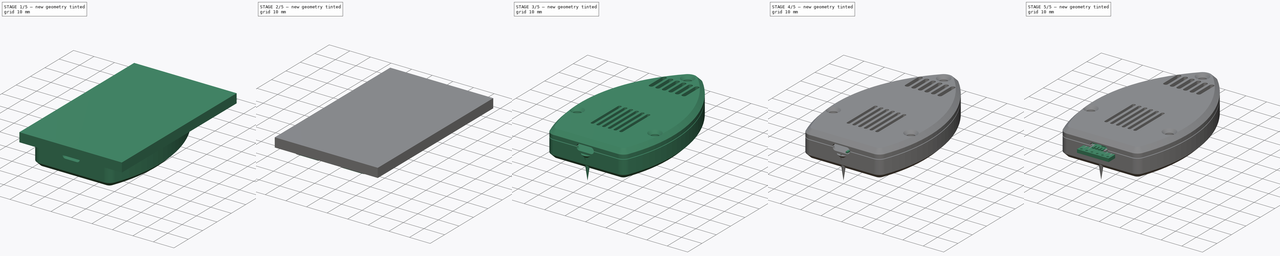
[diagram: build sequence overview — one tinted view per stage of 5, left to right]
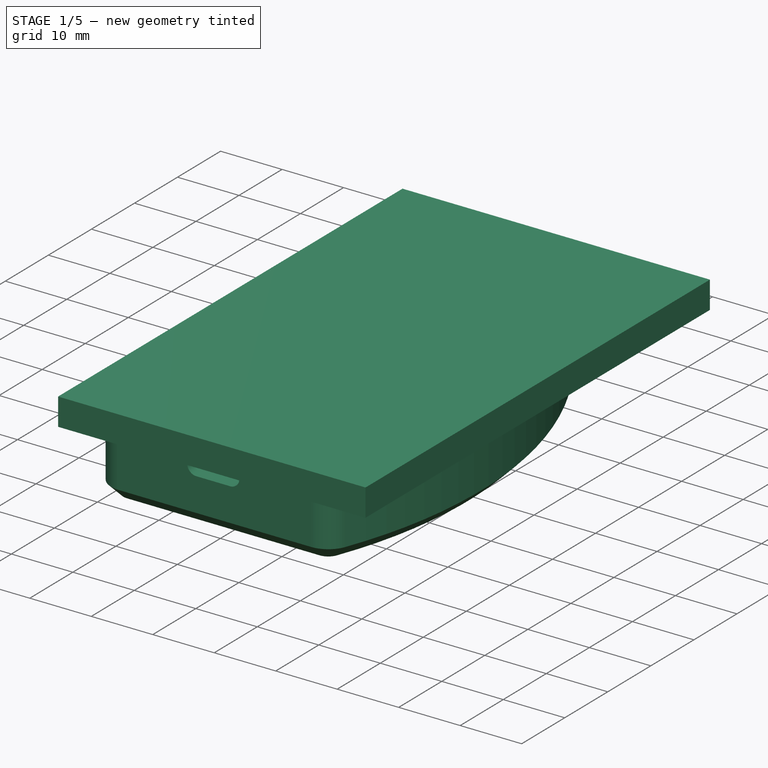
[diagram: stage 1 of 5 — iso view after this stage's code; geometry added in this stage tinted green]
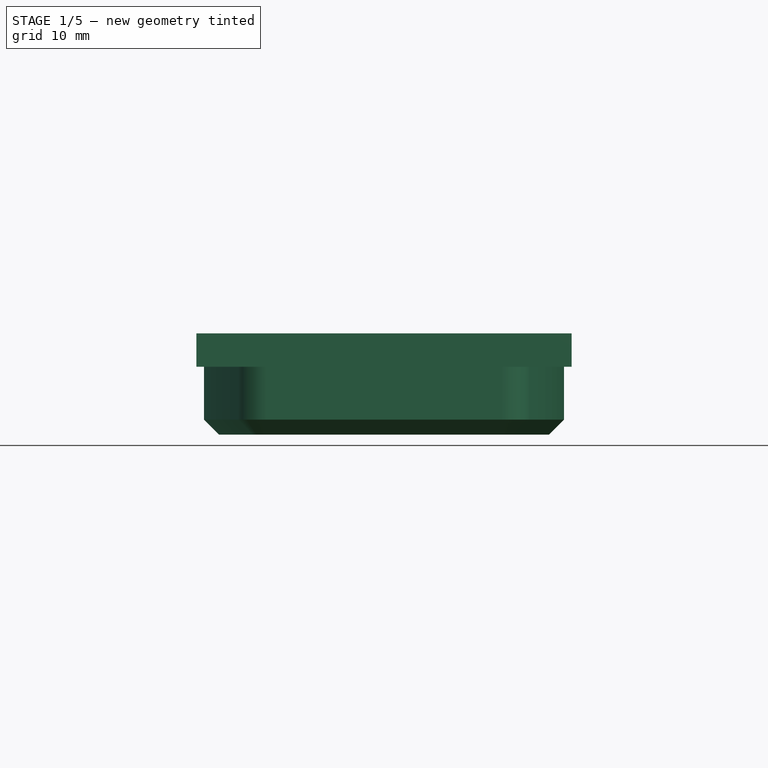
[diagram: stage 1 of 5 — front view after this stage's code; geometry added in this stage tinted green]
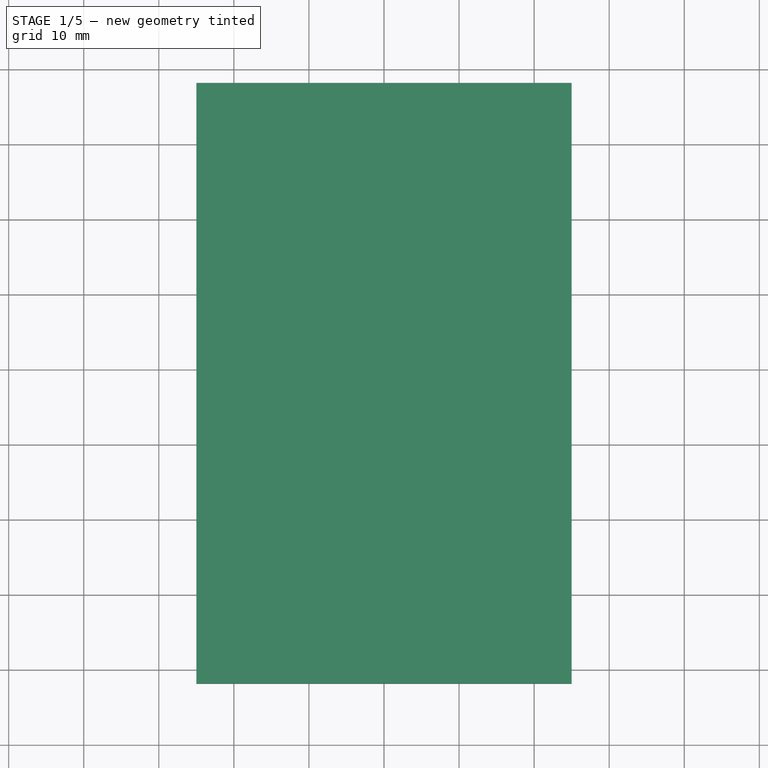
[diagram: stage 1 of 5 — top view after this stage's code; geometry added in this stage tinted green]
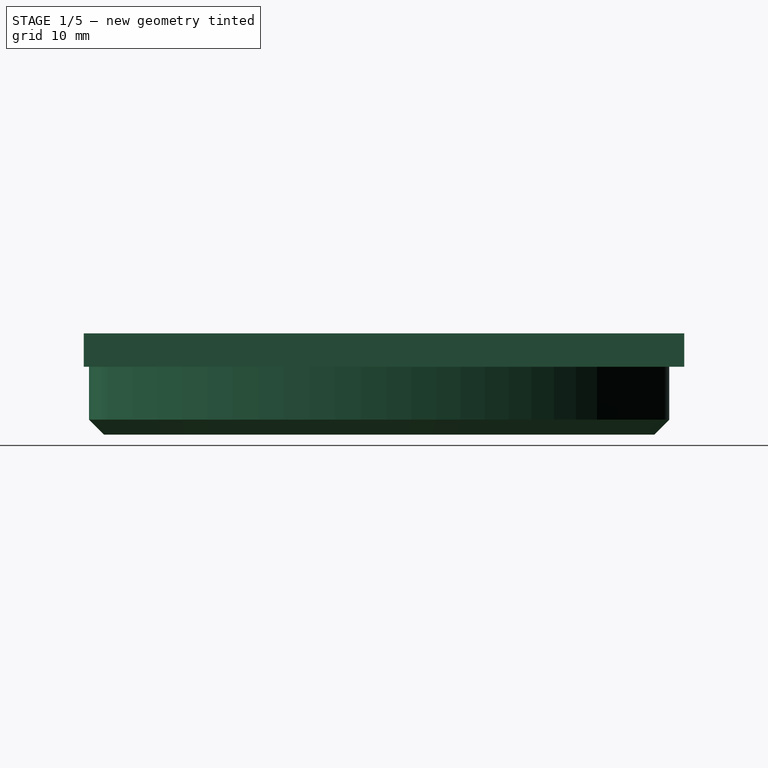
[diagram: stage 1 of 5 — right view after this stage's code; geometry added in this stage tinted green]
FCSTD DOCUMENT  (FreeCAD 0.20R29410 (Git))
Label: SensorHousing
License: All rights reserved
LicenseURL: http://en.wikipedia.org/wiki/All_rights_reserved
objects: Sketcher::SketchObject×38, PartDesign::Pad×14, PartDesign::Body×14, PartDesign::Pocket×12, PartDesign::SubShapeBinder×8, PartDesign::LinearPattern×3, PartDesign::Revolution×3, PartDesign::PolarPattern×3, PartDesign::Groove×2, Part::MultiCommon×2, Part::Feature×1, App::Part×1, PartDesign::Chamfer×1, PartDesign::Mirrored×1, PartDesign::AdditivePipe×1, PartDesign::SubtractivePipe×1
note: 138 computed .brp shape members not serialized (recipe doc carries the construction recipe); baked Part::Feature solids carry a one-line shape summary decoded from their .brp

FEATURE [PartDesign::Body] Body013  label="SelftappingScrew3.0x12_03"
  Group = -> [Sketch017,Revolution002,Sketch018,Pocket003,PolarPattern002]
  Origin = -> Origin012
  Placement = pos=(0,70,6.2) rot=(0,0,1;0rad)
  Tip = -> PolarPattern002
FEATURE [Sketcher::SketchObject] Sketch019  label="hs base"
  FullyConstrained = true
  MapMode = 5
  Support = -> [XY_Plane]
  sketch-geometry (7):
    g0: ArcOfCircle CenterX=0 CenterY=70 CenterZ=0 NormalX=0 NormalY=0 NormalZ=1 AngleXU=0 Radius=6 StartAngle=0.776637 EndAngle=2.36496
    g1: LineSegment StartX=15.6645 StartY=-1.3 StartZ=0 EndX=-15.6645 EndY=-1.3 EndZ=0
    g2: ArcOfCircle CenterX=15.6645 CenterY=2.7 CenterZ=0 NormalX=0 NormalY=0 NormalZ=1 AngleXU=0 Radius=4 StartAngle=4.71239 EndAngle=5.91524
    g3: ArcOfCircle CenterX=-15.6645 CenterY=2.7 CenterZ=0 NormalX=0 NormalY=0 NormalZ=1 AngleXU=0 Radius=4 StartAngle=3.50953 EndAngle=4.71239
    g4: ArcOfCircle CenterX=44.7778 CenterY=26 CenterZ=0 NormalX=0 NormalY=0 NormalZ=1 AngleXU=0 Radius=68.7778 StartAngle=2.36496 EndAngle=3.50953
    g5: ArcOfCircle CenterX=-44.7778 CenterY=26 CenterZ=0 NormalX=0 NormalY=0 NormalZ=1 AngleXU=0 Radius=68.7778 StartAngle=5.91525 EndAngle=7.05982
    g6: LineSegment StartX=-24 StartY=26 StartZ=0 EndX=24 EndY=26 EndZ=0
  constraints (20):
    c: PointOnObject(g0,g-2)
    c: Horizontal(g1)
    c: Symmetric(g3,g2,g-2)
    c: Tangent(g1,g2) = 1.5708
    c: Radius(g2) = 4
    c: Tangent(g1,g3) = 1.5708
    c: DistanceY(g0) = 70
    c: Radius(g0) = 6
    c: Symmetric(g4,g5,g-2)
    c: Tangent(g0,g5) = -1.5708
    c: Tangent(g0,g4) = -1.5708
    c: PointOnObject(g6,g4)
    c: PointOnObject(g6,g5)
    c: Horizontal(g6)
    c: PointOnObject(g4,g6)
    c: DistanceY(g4) = 26
    c: DistanceX(g6,g6) = 48
    c: Tangent(g3,g4) = -1.5708
    c: Coincident(g2,g5)
    c: DistanceY(g1,g-1) = 1.3
FEATURE [PartDesign::Pad] Pad011  label="HS Base"
  Direction = (0,0,1)
  Length = 13
  Length2 = 10
  Midplane = true
  Profile = -> Sketch019
  ReferenceAxis = -> Sketch019 [N_Axis]
  Type = 0
FEATURE [Sketcher::SketchObject] Sketch020  label="hs cavity ESP"
  FullyConstrained = true
  MapMode = 5
  Support = -> [XY_Plane]
  sketch-geometry (4):
    g0: LineSegment StartX=-16 StartY=40 StartZ=0 EndX=16 EndY=40 EndZ=0
    g1: LineSegment StartX=16 StartY=40 StartZ=0 EndX=16 EndY=0 EndZ=0
    g2: LineSegment StartX=16 StartY=0 StartZ=0 EndX=-16 EndY=0 EndZ=0
    g3: LineSegment StartX=-16 StartY=0 StartZ=0 EndX=-16 EndY=40 EndZ=0
  constraints (11):
    c: Coincident(g0,g1)
    c: Coincident(g1,g2)
    c: Coincident(g2,g3)
    c: Coincident(g3,g0)
    c: Horizontal(g0)
    c: Vertical(g1)
    c: Vertical(g3)
    c: Symmetric(g1,g2,g-2)
    c: PointOnObject(g1,g-1)
    c: DistanceX(g2,g2) = 32
    c: DistanceY(g1,g1) = 40
FEATURE [Sketcher::SketchObject] Sketch021  label="hs cavity sensor"
  FullyConstrained = true
  MapMode = 5
  Support = -> [XY_Plane]
  sketch-geometry (4):
    g0: LineSegment StartX=-8 StartY=63.5 StartZ=0 EndX=8 EndY=63.5 EndZ=0
    g1: LineSegment StartX=8 StartY=63.5 StartZ=0 EndX=8 EndY=50.5 EndZ=0
    g2: LineSegment StartX=8 StartY=50.5 StartZ=0 EndX=-8 EndY=50.5 EndZ=0
    g3: LineSegment StartX=-8 StartY=50.5 StartZ=0 EndX=-8 EndY=63.5 EndZ=0
  constraints (11):
    c: Coincident(g0,g1)
    c: Coincident(g1,g2)
    c: Coincident(g2,g3)
    c: Coincident(g3,g0)
    c: Horizontal(g0)
    c: Vertical(g1)
    c: Vertical(g3)
    c: Symmetric(g1,g2,g-2)
    c: DistanceY(g1) = 50.5
    c: DistanceY(g1,g1) = 13
    c: DistanceX(g0,g0) = 16
FEATURE [Sketcher::SketchObject] Sketch022  label="hs cavity wires"
  FullyConstrained = false
  MapMode = 5
  Support = -> [XY_Plane]
  sketch-geometry (18):
    g0: ArcOfCircle CenterX=-6.35 CenterY=52.4 CenterZ=0 NormalX=0 NormalY=0 NormalZ=1 AngleXU=0 Radius=2 StartAngle=1.5708 EndAngle=3.75658
    g1: ArcOfCircle CenterX=6.35 CenterY=52.4 CenterZ=0 NormalX=0 NormalY=0 NormalZ=1 AngleXU=0 Radius=2 StartAngle=5.6682 EndAngle=7.85398
    g2: LineSegment StartX=6.35 StartY=54.4 StartZ=0 EndX=-6.35 EndY=54.4 EndZ=0
    g3: ArcOfCircle CenterX=-14 CenterY=31.26 CenterZ=0 NormalX=0 NormalY=0 NormalZ=1 AngleXU=0 Radius=1.6 StartAngle=1.85282 EndAngle=3.14159
    g4: ArcOfCircle CenterX=14 CenterY=31.26 CenterZ=0 NormalX=0 NormalY=0 NormalZ=1 AngleXU=0 Radius=1.6 StartAngle=7e-16 EndAngle=1.28877
    g5: LineSegment StartX=15.6 StartY=31.26 StartZ=0 EndX=15.6 EndY=8.4 EndZ=0
    g6: ArcOfCircle CenterX=14 CenterY=8.4 CenterZ=0 NormalX=0 NormalY=0 NormalZ=1 AngleXU=0 Radius=1.6 StartAngle=4.71239 EndAngle=6.28319
    g7: LineSegment StartX=14 StartY=6.8 StartZ=0 EndX=-14 EndY=6.8 EndZ=0
    g8: ArcOfCircle CenterX=-14 CenterY=8.4 CenterZ=0 NormalX=0 NormalY=0 NormalZ=1 AngleXU=0 Radius=1.6 StartAngle=3.14159 EndAngle=4.71239
    g9: LineSegment StartX=-15.6 StartY=8.4 StartZ=0 EndX=-15.6 EndY=31.26 EndZ=0
    g10: GeomPoint X=-15.6 Y=32.86 Z=0
    g11: GeomPoint X=15.6 Y=6.8 Z=0
    g12: ArcOfCircle CenterX=17.7849 CenterY=44.3227 CenterZ=0 NormalX=0 NormalY=0 NormalZ=1 AngleXU=0 Radius=12 StartAngle=2.5266 EndAngle=4.43036
    g13: ArcOfCircle CenterX=-17.7849 CenterY=44.3227 CenterZ=0 NormalX=0 NormalY=0 NormalZ=1 AngleXU=0 Radius=12 StartAngle=4.99442 EndAngle=6.89817
    g14: LineSegment StartX=-14 StartY=31.26 StartZ=0 EndX=14 EndY=31.26 EndZ=0
    g15: LineSegment StartX=14 StartY=31.26 StartZ=0 EndX=14 EndY=8.4 EndZ=0
    g16: LineSegment StartX=14 StartY=8.4 StartZ=0 EndX=-14 EndY=8.4 EndZ=0
    g17: LineSegment StartX=-14 StartY=8.4 StartZ=0 EndX=-14 EndY=31.26 EndZ=0
  constraints (43):
    c: Tangent(g1,g2) = -1.5708
    c: Tangent(g2,g0) = -1.5708
    c: Equal(g0,g1)
    c: Symmetric(g1,g0,g-2)
    c: DistanceX(g0,g1) = 12.7
    c: DistanceY(g1) = 52.4
    c: Radius(g1) = 2
    c: Tangent(g4,g5) = 1.5708
    c: Tangent(g5,g6) = 1.5708
    c: Tangent(g6,g7) = 1.5708
    c: Tangent(g7,g8) = 1.5708
    c: Tangent(g8,g9) = 1.5708
    c: Tangent(g9,g3) = 1.5708
    c: Horizontal(g7)
    c: Vertical(g5)
    c: Vertical(g9)
    c: Equal(g3,g4)
    c: Equal(g4,g6)
    c: PointOnObject(g10,g9)
    c: PointOnObject(g11,g5)
    c: PointOnObject(g11,g7)
    c: Symmetric(g6,g8,g-2)
    c: DistanceX(g8,g6) = 28
    c: DistanceY(g6) = 8.4
    c: Radius(g6) = 1.6
    c: DistanceY(g6,g4) = 22.86
    c: Radius(g12) = 12
    c: Equal(g12,g13)
    c: Tangent(g0,g13) = 1.5708
    c: Tangent(g1,g12) = 1.5708
    c: Tangent(g4,g12) = 1.5708
    c: Tangent(g3,g13) = 1.5708
    c: Coincident(g14,g15)
    c: Coincident(g15,g16)
    c: Coincident(g16,g17)
    c: Coincident(g17,g14)
    c: Horizontal(g14)
    c: Horizontal(g16)
    c: Vertical(g17)
    c: Coincident(g15,g6)
    c: Coincident(g4,g14)
    c: Coincident(g3,g14)
    c: Coincident(g8,g16)
FEATURE [Sketcher::SketchObject] Sketch023  label="hs usb hole"
  FullyConstrained = true
  MapMode = 5
  Placement = pos=(0,0,0) rot=(1,0,0;1.5708rad)
  Support = -> [XZ_Plane]
  sketch-geometry (5):
    g0: ArcOfCircle CenterX=-3 CenterY=2.4 CenterZ=0 NormalX=0 NormalY=0 NormalZ=1 AngleXU=0 Radius=1.5 StartAngle=1.5708 EndAngle=4.71239
    g1: ArcOfCircle CenterX=2.5 CenterY=2.4 CenterZ=0 NormalX=0 NormalY=0 NormalZ=1 AngleXU=0 Radius=1.5 StartAngle=4.71239 EndAngle=7.85398
    g2: LineSegment StartX=-3 StartY=0.9 StartZ=0 EndX=2.5 EndY=0.9 EndZ=0
    g3: LineSegment StartX=2.5 StartY=3.9 StartZ=0 EndX=-3 EndY=3.9 EndZ=0
    g4: LineSegment StartX=-0.25 StartY=3.9 StartZ=0 EndX=-0.25 EndY=0 EndZ=0
  constraints (13):
    c: Tangent(g0,g2) = -1.5708
    c: Tangent(g2,g1) = -1.5708
    c: Tangent(g1,g3) = -1.5708
    c: Tangent(g3,g0) = -1.5708
    c: Equal(g0,g1)
    c: DistanceX(g0,g1) = 5.5
    c: PointOnObject(g4,g-1)
    c: Vertical(g4)
    c: DistanceX(g4,g-1) = 0.25
    c: Symmetric(g1,g0,g4)
    c: Diameter(g1) = 3
    c: DistanceY(g1) = 2.4
    c: PointOnObject(g4,g3)
FEATURE [PartDesign::Chamfer] Chamfer  label="HS Base chamfer"
  Angle = 45
  Base = -> Pad011 [Edge18,Edge17]
  BaseFeature = -> Pad011
  ChamferType = 0
  FlipDirection = false
  Size = 2
  Size2 = 1
  SupportTransform = false
  UseAllEdges = false
FEATURE [PartDesign::Pocket] Pocket004  label="HS Cavity ESP"
  BaseFeature = -> Chamfer
  Direction = (0,0,-1)
  Length = 4.5
  Length2 = 5
  Profile = -> Sketch020
  ReferenceAxis = -> Sketch020 [N_Axis]
  Reversed = true
  Type = 0
FEATURE [PartDesign::Pocket] Pocket005  label="HS Cavity sensor"
  BaseFeature = -> Pocket004
  Direction = (0,0,-1)
  Length = 3
  Length2 = 5
  Profile = -> Sketch021
  ReferenceAxis = -> Sketch021 [N_Axis]
  Reversed = true
  Type = 0
FEATURE [PartDesign::Pocket] Pocket006  label="HS Cavity wires"
  BaseFeature = -> Pocket005
  Direction = (0,0,-1)
  Length = 4
  Length2 = 5
  Midplane = true
  Profile = -> Sketch022
  ReferenceAxis = -> Sketch022 [N_Axis]
  Type = 0
FEATURE [Sketcher::SketchObject] Sketch025  label="hs vent hole ESP"
  FullyConstrained = true
  MapMode = 5
  Support = -> [XY_Plane]
  sketch-geometry (4):
    g0: ArcOfCircle CenterX=-7 CenterY=32.5 CenterZ=0 NormalX=0 NormalY=0 NormalZ=1 AngleXU=0 Radius=0.75 StartAngle=-5.764e-13 EndAngle=3.14159
    g1: ArcOfCircle CenterX=-7 CenterY=13.5 CenterZ=0 NormalX=0 NormalY=0 NormalZ=1 AngleXU=0 Radius=0.75 StartAngle=3.14159 EndAngle=6.28319
    g2: LineSegment StartX=-7.75 StartY=32.5 StartZ=0 EndX=-7.75 EndY=13.5 EndZ=0
    g3: LineSegment StartX=-6.25 StartY=13.5 StartZ=0 EndX=-6.25 EndY=32.5 EndZ=0
  constraints (10):
    c: Tangent(g0,g2) = -1.5708
    c: Tangent(g2,g1) = -1.5708
    c: Tangent(g1,g3) = -1.5708
    c: Tangent(g3,g0) = -1.5708
    c: Equal(g0,g1)
    c: Vertical(g2)
    c: DistanceX(g0,g-1) = 7
    c: Diameter(g0) = 1.5
    c: DistanceY(g1) = 13.5
    c: DistanceY(g0) = 32.5
FEATURE [Sketcher::SketchObject] Sketch026  label="hs vent hole sensor"
  FullyConstrained = true
  MapMode = 5
  Support = -> [XY_Plane]
  sketch-geometry (4):
    g0: ArcOfCircle CenterX=-8 CenterY=65 CenterZ=0 NormalX=0 NormalY=0 NormalZ=1 AngleXU=0 Radius=1 StartAngle=-2.7e-15 EndAngle=3.14159
    g1: ArcOfCircle CenterX=-8 CenterY=56 CenterZ=0 NormalX=0 NormalY=0 NormalZ=1 AngleXU=0 Radius=1 StartAngle=3.14159 EndAngle=6.28319
    g2: LineSegment StartX=-9 StartY=65 StartZ=0 EndX=-9 EndY=56 EndZ=0
    g3: LineSegment StartX=-7 StartY=56 StartZ=0 EndX=-7 EndY=65 EndZ=0
  constraints (10):
    c: Tangent(g0,g2) = -1.5708
    c: Tangent(g2,g1) = -1.5708
    c: Tangent(g1,g3) = -1.5708
    c: Tangent(g3,g0) = -1.5708
    c: Equal(g0,g1)
    c: Vertical(g2)
    c: DistanceX(g1,g-1) = 8
    c: DistanceY(g1) = 56
    c: DistanceY(g0) = 65
    c: Diameter(g0) = 2
FEATURE [Sketcher::SketchObject] Sketch027  label="hs screw hole 1"
  AttachmentOffset = pos=(0,0,-20) rot=(0,0,1;0rad)
  FullyConstrained = true
  MapMode = 5
  Placement = pos=(0,20,4.4e-15) rot=(1,0,0;1.5708rad)
  Support = -> [XZ_Plane]
  sketch-geometry (6):
    g0: LineSegment StartX=19 StartY=6.7 StartZ=0 EndX=19 EndY=-5.8 EndZ=0
    g1: LineSegment StartX=19 StartY=-5.8 StartZ=0 EndX=19.4 EndY=-5.8 EndZ=0
    g2: LineSegment StartX=19.4 StartY=-5.8 StartZ=0 EndX=20.8 EndY=5.2 EndZ=0
    g3: LineSegment StartX=20.8 StartY=5.2 StartZ=0 EndX=22.3 EndY=6.7 EndZ=0
    g4: LineSegment StartX=22.3 StartY=6.7 StartZ=0 EndX=19 EndY=6.7 EndZ=0
    g5: LineSegment StartX=19 StartY=6.7 StartZ=0 EndX=19 EndY=10 EndZ=0
  constraints (18):
    c: Vertical(g0)
    c: Coincident(g0,g1)
    c: Horizontal(g1)
    c: Coincident(g1,g2)
    c: Coincident(g2,g3)
    c: Coincident(g3,g4)
    c: Coincident(g4,g0)
    c: DistanceX(g0) = 19
    c: DistanceY(g0,g-1) = 5.8
    c: DistanceY(g-1,g3) = 6.7
    c: Horizontal(g4)
    c: DistanceX(g0,g2) = 1.8
    c: DistanceY(g2) = 5.2
    c: Angle(g0,g3) = 2.35619
    c: DistanceX(g1,g1) = 0.4
    c: Coincident(g5,g0)
    c: Vertical(g5)
    c: Equal(g5,g4)
FEATURE [Sketcher::SketchObject] Sketch028  label="hs screw hole 3"
  AttachmentOffset = pos=(0,0,-70) rot=(0,0,1;0rad)
  FullyConstrained = true
  MapMode = 5
  Placement = pos=(0,70,1.55e-14) rot=(1,0,0;1.5708rad)
  Support = -> [XZ_Plane]
  sketch-geometry (6):
    g0: LineSegment StartX=0 StartY=6.7 StartZ=0 EndX=0 EndY=-5.8 EndZ=0
    g1: LineSegment StartX=0 StartY=-5.8 StartZ=0 EndX=0.4 EndY=-5.8 EndZ=0
    g2: LineSegment StartX=0.4 StartY=-5.8 StartZ=0 EndX=1.8 EndY=5.2 EndZ=0
    g3: LineSegment StartX=1.8 StartY=5.2 StartZ=0 EndX=3.3 EndY=6.7 EndZ=0
    g4: LineSegment StartX=3.3 StartY=6.7 StartZ=0 EndX=0 EndY=6.7 EndZ=0
    g5: LineSegment StartX=0 StartY=6.7 StartZ=0 EndX=0 EndY=10 EndZ=0
  constraints (18):
    c: Vertical(g0)
    c: Coincident(g0,g1)
    c: Horizontal(g1)
    c: Coincident(g1,g2)
    c: Coincident(g2,g3)
    c: Coincident(g3,g4)
    c: Coincident(g4,g0)
    c: DistanceY(g0,g-1) = 5.8
    c: DistanceY(g-1,g3) = 6.7
    c: Horizontal(g4)
    c: DistanceX(g0,g2) = 1.8
    c: DistanceY(g2) = 5.2
    c: Angle(g0,g3) = 2.35619
    c: DistanceX(g1,g1) = 0.4
    c: Coincident(g5,g0)
    c: Vertical(g5)
    c: Equal(g5,g4)
    c: PointOnObject(g0,g-2)
FEATURE [Sketcher::SketchObject] Sketch029  label="st separation line"
  FullyConstrained = true
  MapMode = 5
  Placement = pos=(0,0,0) rot=(1,0,0;1.5708rad)
  Support = -> [XZ_Plane014]
  sketch-geometry (1):
    g0: LineSegment StartX=25 StartY=2.4 StartZ=0 EndX=-25 EndY=2.4 EndZ=0
  constraints (3):
    c: DistanceY(g0) = 2.4
    c: DistanceX(g0) = 25
    c: Symmetric(g0,g0,g-2)
FEATURE [Sketcher::SketchObject] Sketch030  label="st separation back"
  AttachmentOffset = pos=(0,0,1.5) rot=(0,0,1;0rad)
  ExternalGeometry = -> [Sketch029]
  FullyConstrained = false
  MapMode = 5
  Placement = pos=(0,-1.5,-3e-16) rot=(1,0,0;1.5708rad)
  Support = -> [XZ_Plane014]
  sketch-geometry (10):
    g0: ArcOfCircle CenterX=-15 CenterY=-12.025 CenterZ=0 NormalX=0 NormalY=0 NormalZ=1 AngleXU=0 Radius=16.225 StartAngle=1.25349 EndAngle=1.5708
    g1: ArcOfCircle CenterX=-5 CenterY=18.425 CenterZ=0 NormalX=0 NormalY=0 NormalZ=1 AngleXU=0 Radius=15.825 StartAngle=4.39508 EndAngle=4.71239
    g2: ArcOfCircle CenterX=5 CenterY=18.425 CenterZ=0 NormalX=0 NormalY=0 NormalZ=1 AngleXU=0 Radius=15.825 StartAngle=4.71239 EndAngle=5.0297
    g3: ArcOfCircle CenterX=15 CenterY=-12.025 CenterZ=0 NormalX=0 NormalY=0 NormalZ=1 AngleXU=0 Radius=16.225 StartAngle=1.5708 EndAngle=1.88811
    g4: LineSegment StartX=15 StartY=4.2 StartZ=0 EndX=25 EndY=4.2 EndZ=0
    g5: LineSegment StartX=25 StartY=4.2 StartZ=0 EndX=25 EndY=7 EndZ=0
    g6: LineSegment StartX=25 StartY=7 StartZ=0 EndX=-25 EndY=7 EndZ=0
    g7: LineSegment StartX=-25 StartY=7 StartZ=0 EndX=-25 EndY=4.2 EndZ=0
    g8: LineSegment StartX=-25 StartY=4.2 StartZ=0 EndX=-15 EndY=4.2 EndZ=0
    g9: LineSegment StartX=-5 StartY=2.6 StartZ=0 EndX=5 EndY=2.6 EndZ=0
  constraints (18):
    c: Horizontal(g4)
    c: Coincident(g4,g5)
    c: Vertical(g5)
    c: Coincident(g5,g6)
    c: Coincident(g6,g7)
    c: Vertical(g7)
    c: Coincident(g7,g8)
    c: Horizontal(g8)
    c: Horizontal(g9)
    c: Tangent(g2,g9) = -1.5708
    c: Tangent(g2,g3) = 1.5708
    c: Tangent(g3,g4) = 1.5708
    c: Tangent(g0,g1) = 1.5708
    c: Tangent(g1,g9) = -1.5708
    c: Tangent(g0,g8) = 1.5708
    c: Symmetric(g6,g5,g-2)
    c: DistanceX(g6,g6) = 50
    c: DistanceY(g5) = 7
FEATURE [Sketcher::SketchObject] Sketch031  label="st separation front"
  AttachmentOffset = pos=(0,0,-78) rot=(0,0,1;0rad)
  ExternalGeometry = -> [Sketch030]
  FullyConstrained = true
  MapMode = 5
  Placement = pos=(0,78,1.73e-14) rot=(1,0,0;1.5708rad)
  Support = -> [XZ_Plane014]
  sketch-geometry (4):
    g0: LineSegment StartX=-25 StartY=7 StartZ=0 EndX=25 EndY=7 EndZ=0
    g1: LineSegment StartX=25 StartY=7 StartZ=0 EndX=25 EndY=4.2 EndZ=0
    g2: LineSegment StartX=25 StartY=4.2 StartZ=0 EndX=-25 EndY=4.2 EndZ=0
    g3: LineSegment StartX=-25 StartY=4.2 StartZ=0 EndX=-25 EndY=7 EndZ=0
  constraints (10):
    c: Coincident(g0,g1)
    c: Coincident(g1,g2)
    c: Coincident(g2,g3)
    c: Coincident(g3,g0)
    c: Horizontal(g0)
    c: Horizontal(g2)
    c: Vertical(g1)
    c: Vertical(g3)
    c: Coincident(g0,g-4)
    c: Coincident(g2,g-3)
FEATURE [PartDesign::SubShapeBinder] Binder  label="st ref contour"
  BindCopyOnChange = 0
  BindMode = 0
  ClaimChildren = false
  Context = -> Body014 [Binder.]
  Fuse = false
  MakeFace = true
  OffsetFill = false
  OffsetIntersection = false
  OffsetJoinType = 0
  OffsetOpenResult = false
  PartialLoad = false
  Relative = true
  Support = -> [Body[Pad011.Sketch019.]]
  _Version = 2
FEATURE [Sketcher::SketchObject] Sketch032  label="st rim crs"
  FullyConstrained = true
  MapMode = 5
  Placement = pos=(0,0,0) rot=(0.57735,0.57735,0.57735;2.0944rad)
  Support = -> [YZ_Plane013]
  sketch-geometry (5):
    g0: LineSegment StartX=75.1826 StartY=3 StartZ=0 EndX=72.8174 EndY=3 EndZ=0
    g1: LineSegment StartX=72.8174 StartY=3 StartZ=0 EndX=73.75 EndY=1 EndZ=0
    g2: LineSegment StartX=73.75 StartY=1 StartZ=0 EndX=74.25 EndY=1 EndZ=0
    g3: LineSegment StartX=74.25 StartY=1 StartZ=0 EndX=75.1826 EndY=3 EndZ=0
    g4: LineSegment StartX=74 StartY=1 StartZ=0 EndX=74 EndY=3 EndZ=0
  constraints (14):
    c: Horizontal(g0)
    c: Coincident(g0,g1)
    c: Coincident(g1,g2)
    c: Coincident(g2,g3)
    c: Coincident(g3,g0)
    c: PointOnObject(g4,g2)
    c: PointOnObject(g4,g0)
    c: Symmetric(g1,g2,g4)
    c: Symmetric(g0,g0,g4)
    c: DistanceX(g2,g2) = 0.5
    c: Angle(g3,g1) = 0.872665
    c: DistanceY(g0) = 3
    c: DistanceY(g2,g0) = 2
    c: DistanceX(g4) = 74
FEATURE [Sketcher::SketchObject] Sketch033  label="st rim trj"
  ExternalGeometry = -> [Binder]
  FullyConstrained = true
  MapMode = 5
  Support = -> [XY_Plane013]
  sketch-geometry (8):
    g0: ArcOfCircle CenterX=0 CenterY=70 CenterZ=0 NormalX=0 NormalY=0 NormalZ=1 AngleXU=0 Radius=4 StartAngle=0.776637 EndAngle=2.36495
    g1: ArcOfCircle CenterX=-44.7778 CenterY=26 CenterZ=0 NormalX=0 NormalY=0 NormalZ=1 AngleXU=0 Radius=66.7778 StartAngle=5.91525 EndAngle=7.05982
    g2: ArcOfCircle CenterX=15.6645 CenterY=2.7 CenterZ=0 NormalX=0 NormalY=0 NormalZ=1 AngleXU=0 Radius=2 StartAngle=4.71239 EndAngle=5.91525
    g3: LineSegment StartX=15.6645 StartY=0.7 StartZ=0 EndX=5.5 EndY=0.7 EndZ=0
    g4: GeomPoint X=0 Y=74 Z=0
    g5: ArcOfCircle CenterX=44.7778 CenterY=26 CenterZ=0 NormalX=0 NormalY=0 NormalZ=1 AngleXU=0 Radius=66.7778 StartAngle=2.36495 EndAngle=3.50953
    g6: ArcOfCircle CenterX=-15.6645 CenterY=2.7 CenterZ=0 NormalX=0 NormalY=0 NormalZ=1 AngleXU=0 Radius=2 StartAngle=3.50953 EndAngle=4.71239
    g7: LineSegment StartX=-15.6645 StartY=0.7 StartZ=0 EndX=-5.5 EndY=0.7 EndZ=0
  constraints (18):
    c: Coincident(g0,g-3)
    c: Coincident(g1,g-4)
    c: Coincident(g2,g-5)
    c: Horizontal(g3)
    c: Tangent(g2,g3) = 1.5708
    c: Tangent(g1,g2) = -1.5708
    c: DistanceX(g3) = 5.5
    c: Tangent(g0,g1) = -1.5708
    c: PointOnObject(g4,g0)
    c: PointOnObject(g4,g-2)
    c: DistanceY(g4) = 74
    c: Symmetric(g6,g2,g-2)
    c: Tangent(g5,g6) = -1.5708
    c: Horizontal(g7)
    c: Tangent(g6,g7) = -1.5708
    c: Symmetric(g7,g3,g-2)
    c: Symmetric(g5,g1,g-2)
    c: Coincident(g0,g5)
FEATURE [PartDesign::SubShapeBinder] Binder001  label="sb ref separation line"
  BindCopyOnChange = 0
  BindMode = 0
  ClaimChildren = false
  Context = -> Body015 [Binder001.]
  Fuse = false
  MakeFace = true
  OffsetFill = false
  OffsetIntersection = false
  OffsetJoinType = 0
  OffsetOpenResult = false
  PartialLoad = false
  Relative = true
  Support = -> [Body014[Sketch029.]]
  _Version = 2
FEATURE [PartDesign::SubShapeBinder] Binder002  label="sb ref groove crs"
  BindCopyOnChange = 0
  BindMode = 0
  ClaimChildren = false
  Context = -> Body015 [Binder002.]
  Fuse = false
  MakeFace = true
  OffsetFill = false
  OffsetIntersection = false
  OffsetJoinType = 0
  OffsetOpenResult = false
  PartialLoad = false
  Relative = true
  Support = -> [Body014[AdditivePipe.Sketch032.]]
  _Version = 2
FEATURE [PartDesign::SubShapeBinder] Binder003  label="sb ref groove trj"
  BindCopyOnChange = 0
  BindMode = 0
  ClaimChildren = false
  Context = -> Body015 [Binder003.]
  Fuse = false
  MakeFace = true
  OffsetFill = false
  OffsetIntersection = false
  OffsetJoinType = 0
  OffsetOpenResult = false
  PartialLoad = false
  Relative = true
  Support = -> [Body014[AdditivePipe.Sketch033.]]
  _Version = 2
FEATURE [Sketcher::SketchObject] Sketch036  label="sb groove trj"
  ExternalGeometry = -> [Binder003]
  FullyConstrained = true
  MapMode = 5
  Support = -> [XY_Plane014]
  sketch-geometry (7):
    g0: ArcOfCircle CenterX=0 CenterY=70 CenterZ=0 NormalX=0 NormalY=0 NormalZ=1 AngleXU=0 Radius=4 StartAngle=0.776637 EndAngle=2.36496
    g1: ArcOfCircle CenterX=-44.7778 CenterY=26 CenterZ=0 NormalX=0 NormalY=0 NormalZ=1 AngleXU=0 Radius=66.7778 StartAngle=5.91525 EndAngle=7.05982
    g2: ArcOfCircle CenterX=15.6645 CenterY=2.7 CenterZ=0 NormalX=0 NormalY=0 NormalZ=1 AngleXU=0 Radius=2 StartAngle=4.71239 EndAngle=5.91525
    g3: LineSegment StartX=15.6645 StartY=0.7 StartZ=0 EndX=5.5 EndY=0.7 EndZ=0
    g4: ArcOfCircle CenterX=44.7778 CenterY=26 CenterZ=0 NormalX=0 NormalY=0 NormalZ=1 AngleXU=0 Radius=66.7778 StartAngle=2.36496 EndAngle=3.50953
    g5: ArcOfCircle CenterX=-15.6645 CenterY=2.7 CenterZ=0 NormalX=0 NormalY=0 NormalZ=1 AngleXU=0 Radius=2 StartAngle=3.50953 EndAngle=4.71239
    g6: LineSegment StartX=-15.6645 StartY=0.7 StartZ=0 EndX=-5.5 EndY=0.7 EndZ=0
  constraints (15):
    c: Coincident(g0,g-6)
    c: Coincident(g1,g-5)
    c: Coincident(g2,g-4)
    c: Horizontal(g3)
    c: Tangent(g2,g3) = 1.5708
    c: Tangent(g1,g2) = -1.5708
    c: Tangent(g0,g1) = -1.5708
    c: Symmetric(g4,g1,g-2)
    c: Tangent(g0,g4) = -1.5708
    c: Horizontal(g6)
    c: Symmetric(g6,g3,g-2)
    c: Tangent(g5,g6) = -1.5708
    c: Tangent(g4,g5) = -1.5708
    c: Coincident(g3,g-3)
    c: Horizontal(g5,g2)
FEATURE [Sketcher::SketchObject] Sketch037  label="sb groove crs"
  ExternalGeometry = -> [Binder002]
  FullyConstrained = true
  MapMode = 5
  Placement = pos=(0,0,0) rot=(0.57735,0.57735,0.57735;2.0944rad)
  Support = -> [YZ_Plane014]
  sketch-geometry (4):
    g0: LineSegment StartX=72.0893 StartY=3 StartZ=0 EndX=74 EndY=0.509926 EndZ=0
    g1: LineSegment StartX=74 StartY=0.509926 StartZ=0 EndX=75.9107 EndY=3 EndZ=0
    g2: LineSegment StartX=75.9107 StartY=3 StartZ=0 EndX=72.0893 EndY=3 EndZ=0
    g3: LineSegment StartX=74 StartY=0.509926 StartZ=0 EndX=74 EndY=3 EndZ=0
  constraints (10):
    c: Coincident(g0,g1)
    c: Coincident(g1,g2)
    c: Coincident(g2,g0)
    c: PointOnObject(g-3,g2)
    c: Coincident(g3,g0)
    c: PointOnObject(g3,g2)
    c: Symmetric(g-4,g-4,g3)
    c: Symmetric(g1,g0,g3)
    c: Angle(g1,g0) = 1.309
    c: Distance(g-4,g1) = 0.1
FEATURE [PartDesign::SubShapeBinder] Binder004  label="sb rev cavity wires"
  BindCopyOnChange = 0
  BindMode = 0
  ClaimChildren = false
  Context = -> Body015 [Binder004.]
  Fuse = false
  MakeFace = true
  OffsetFill = false
  OffsetIntersection = false
  OffsetJoinType = 0
  OffsetOpenResult = false
  PartialLoad = false
  Relative = true
  Support = -> [Body[Pocket006.Sketch022.]]
  _Version = 2
FEATURE [PartDesign::SubShapeBinder] Binder005  label="sb rev cavity sensor"
  BindCopyOnChange = 0
  BindMode = 0
  ClaimChildren = false
  Context = -> Body015 [Binder005.]
  Fuse = false
  MakeFace = true
  OffsetFill = false
  OffsetIntersection = false
  OffsetJoinType = 0
  OffsetOpenResult = false
  PartialLoad = false
  Relative = true
  Support = -> [Body[Pocket005.Sketch021.]]
  _Version = 2
FEATURE [Sketcher::SketchObject] Sketch038  label="sb cutout wires and sensor"
  AttachmentOffset = pos=(0,0,-0.5) rot=(0,0,1;0rad)
  ExternalGeometry = -> [Binder005,Binder004]
  FullyConstrained = true
  MapMode = 5
  Placement = pos=(0,0,-0.5) rot=(0,0,1;0rad)
  Support = -> [XY_Plane014]
  sketch-geometry (8):
    g0: ArcOfCircle CenterX=17.7849 CenterY=44.3227 CenterZ=0 NormalX=0 NormalY=0 NormalZ=1 AngleXU=0 Radius=12 StartAngle=2.60085 EndAngle=4.43036
    g1: LineSegment StartX=7.49701 StartY=50.5 StartZ=0 EndX=8 EndY=50.5 EndZ=0
    g2: LineSegment StartX=8 StartY=50.5 StartZ=0 EndX=8 EndY=63.5 EndZ=0
    g3: LineSegment StartX=8 StartY=63.5 StartZ=0 EndX=-8 EndY=63.5 EndZ=0
    g4: LineSegment StartX=-8 StartY=63.5 StartZ=0 EndX=-8 EndY=50.5 EndZ=0
    g5: LineSegment StartX=-8 StartY=50.5 StartZ=0 EndX=-7.49701 EndY=50.5 EndZ=0
    g6: ArcOfCircle CenterX=-17.7849 CenterY=44.3227 CenterZ=0 NormalX=0 NormalY=0 NormalZ=1 AngleXU=0 Radius=12 StartAngle=4.99442 EndAngle=6.82393
    g7: LineSegment StartX=14.4453 StartY=32.7968 StartZ=0 EndX=-14.4453 EndY=32.7968 EndZ=0
  constraints (18):
    c: Coincident(g0,g-5)
    c: Coincident(g0,g-5)
    c: Coincident(g1,g-3)
    c: Coincident(g1,g2)
    c: Coincident(g2,g-3)
    c: Coincident(g2,g3)
    c: Coincident(g3,g-4)
    c: Coincident(g3,g4)
    c: Coincident(g4,g-4)
    c: Coincident(g4,g5)
    c: Horizontal(g5)
    c: Coincident(g0,g1)
    c: Horizontal(g1)
    c: Coincident(g6,g5)
    c: Symmetric(g0,g6,g-2)
    c: Coincident(g7,g0)
    c: Coincident(g7,g6)
    c: Symmetric(g6,g0,g-2)
FEATURE [Sketcher::SketchObject] Sketch039  label="hs rib thermal barrier"
  AttachmentOffset = pos=(0,0,-0.5) rot=(0,0,1;0rad)
  ExternalGeometry = -> [Sketch022]
  FullyConstrained = true
  MapMode = 5
  Placement = pos=(0,0,-0.5) rot=(0,0,1;0rad)
  Support = -> [XY_Plane]
  sketch-geometry (5):
    g0: ArcOfCircle CenterX=-4.58492 CenterY=44.3227 CenterZ=0 NormalX=0 NormalY=0 NormalZ=1 AngleXU=0 Radius=1 StartAngle=1.5708 EndAngle=4.71239
    g1: ArcOfCircle CenterX=4.58492 CenterY=44.3227 CenterZ=0 NormalX=0 NormalY=0 NormalZ=1 AngleXU=0 Radius=1 StartAngle=4.71239 EndAngle=7.85398
    g2: LineSegment StartX=-4.58492 StartY=43.3227 StartZ=0 EndX=4.58492 EndY=43.3227 EndZ=0
    g3: LineSegment StartX=4.58492 StartY=45.3227 StartZ=0 EndX=-4.58492 EndY=45.3227 EndZ=0
    g4: LineSegment StartX=5.78492 StartY=44.3227 StartZ=0 EndX=5.58492 EndY=44.3227 EndZ=0
  constraints (13):
    c: Tangent(g0,g2) = -1.5708
    c: Tangent(g2,g1) = -1.5708
    c: Tangent(g1,g3) = -1.5708
    c: Tangent(g3,g0) = -1.5708
    c: Equal(g0,g1)
    c: Diameter(g1) = 2
    c: Symmetric(g1,g0,g-2)
    c: Horizontal(g-3,g1)
    c: PointOnObject(g4,g-3)
    c: PointOnObject(g4,g1)
    c: Horizontal(g4)
    c: DistanceX(g4,g4) = 0.2
    c: PointOnObject(g-3,g4)
FEATURE [PartDesign::Pad] Pad012  label="HS Thermal barrier"
  BaseFeature = -> Pocket006
  Direction = (0,0,1)
  Length = 10
  Length2 = 10
  Profile = -> Sketch039
  ReferenceAxis = -> Sketch039 [N_Axis]
  Type = 2
FEATURE [PartDesign::Pocket] Pocket007  label="HS USB hole"
  BaseFeature = -> Pad012
  Direction = (0,1,-2e-16)
  Length = 10
  Length2 = 5
  Midplane = true
  Profile = -> Sketch023
  ReferenceAxis = -> Sketch023 [N_Axis]
  Type = 0
FEATURE [PartDesign::Pocket] Pocket008  label="HS First vent hole ESP"
  BaseFeature = -> Pocket007
  Direction = (0,0,-1)
  Length = 5
  Length2 = 5
  Profile = -> Sketch025
  ReferenceAxis = -> Sketch025 [N_Axis]
  Reversed = true
  Type = 1
FEATURE [PartDesign::Body] Body  label="Housing"
  Group = -> [Sketch019,Pad011,Sketch020,Chamfer,Sketch025,Pocket004,Sketch021,Pocket005,Sketch022,Pocket006,Sketch039,Sketch023,Pad012,Pocket007,Pocket008,LinearPattern001,Sketch026,Pocket009,LinearPattern002,Sketch027,Groove,Mirrored,Sketch028,Groove001]
  Origin = -> Origin
  Tip = -> Groove001
FEATURE [PartDesign::SubShapeBinder] Binder006  label="st ref thermal barrier"
  BindCopyOnChange = 0
  BindMode = 0
  ClaimChildren = false
  Context = -> Body014 [Binder006.]
  Fuse = false
  MakeFace = true
  OffsetFill = false
  OffsetIntersection = false
  OffsetJoinType = 0
  OffsetOpenResult = false
  PartialLoad = false
  Relative = true
  Support = -> [Body[Pad012.Sketch039.]]
  _Version = 2
FEATURE [Sketcher::SketchObject] Sketch040  label="st thermal barrier"
  AttachmentOffset = pos=(0,0,-2) rot=(0,0,1;0rad)
  ExternalGeometry = -> [Binder006]
  FullyConstrained = true
  MapMode = 5
  Placement = pos=(0,0,-2) rot=(0,0,1;0rad)
  Support = -> [XY_Plane013]
  sketch-geometry (4):
    g0: ArcOfCircle CenterX=-4.58492 CenterY=44.3227 CenterZ=0 NormalX=0 NormalY=0 NormalZ=1 AngleXU=0 Radius=1 StartAngle=1.5708 EndAngle=4.71239
    g1: ArcOfCircle CenterX=4.58492 CenterY=44.3227 CenterZ=0 NormalX=0 NormalY=0 NormalZ=1 AngleXU=0 Radius=1 StartAngle=4.71239 EndAngle=7.85398
    g2: LineSegment StartX=-4.58492 StartY=43.3227 StartZ=0 EndX=4.58492 EndY=43.3227 EndZ=0
    g3: LineSegment StartX=4.58492 StartY=45.3227 StartZ=0 EndX=-4.58492 EndY=45.3227 EndZ=0
  constraints (8):
    c: Tangent(g0,g2) = -1.5708
    c: Tangent(g2,g1) = -1.5708
    c: Tangent(g1,g3) = -1.5708
    c: Tangent(g3,g0) = -1.5708
    c: Equal(g0,g1)
    c: Coincident(g1,g-3)
    c: Symmetric(g1,g0,g-2)
    c: PointOnObject(g-3,g3)
FEATURE [Sketcher::SketchObject] Sketch041  label="st base"
  AttachmentOffset = pos=(0,0,2) rot=(0,0,1;0rad)
  ExternalGeometry = -> [Sketch029]
  FullyConstrained = true
  MapMode = 5
  Placement = pos=(0,-2,-4e-16) rot=(1,0,0;1.5708rad)
  Support = -> [XZ_Plane014]
  sketch-geometry (4):
    g0: LineSegment StartX=-25 StartY=7 StartZ=0 EndX=25 EndY=7 EndZ=0
    g1: LineSegment StartX=25 StartY=7 StartZ=0 EndX=25 EndY=2.55 EndZ=0
    g2: LineSegment StartX=25 StartY=2.55 StartZ=0 EndX=-25 EndY=2.55 EndZ=0
    g3: LineSegment StartX=-25 StartY=2.55 StartZ=0 EndX=-25 EndY=7 EndZ=0
  constraints (12):
    c: Coincident(g0,g1)
    c: Coincident(g1,g2)
    c: Coincident(g2,g3)
    c: Coincident(g3,g0)
    c: Horizontal(g0)
    c: Horizontal(g2)
    c: Vertical(g1)
    c: Vertical(g3)
    c: PointOnObject(g-3,g1)
    c: PointOnObject(g-3,g3)
    c: DistanceY(g-3,g2) = 0.15
    c: DistanceY(g0) = 7
FEATURE [PartDesign::Pad] Pad014  label="ST Base"
  Direction = (0,-1,-2e-16)
  Length = 80
  Length2 = 10
  Placement = pos=(0,0,0) rot=(1,0,0;1.5708rad)
  Profile = -> Sketch041
  ReferenceAxis = -> Sketch041 [N_Axis]
  Reversed = true
  Type = 0
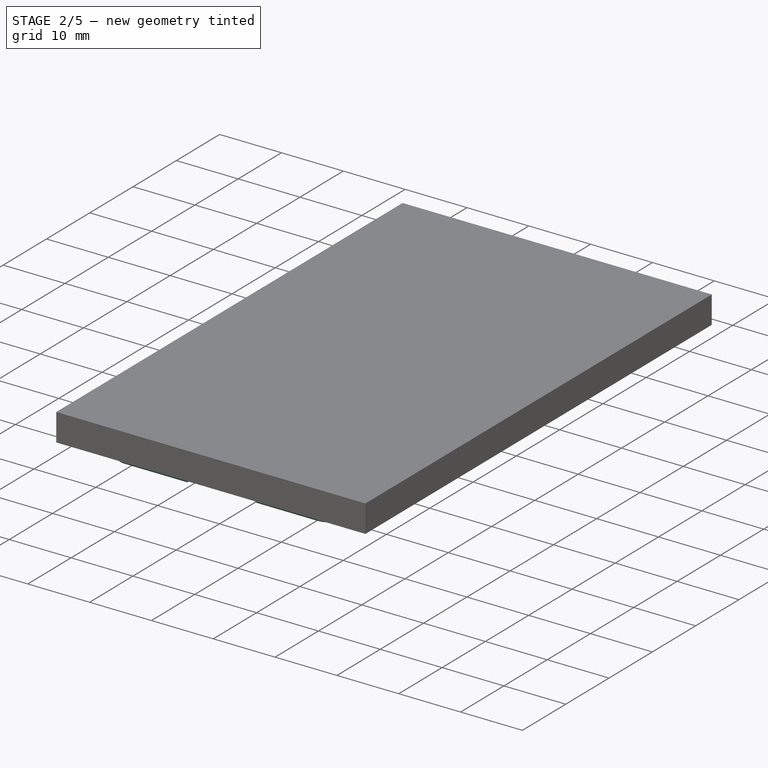
[diagram: stage 2 of 5 — iso view after this stage's code; geometry added in this stage tinted green]
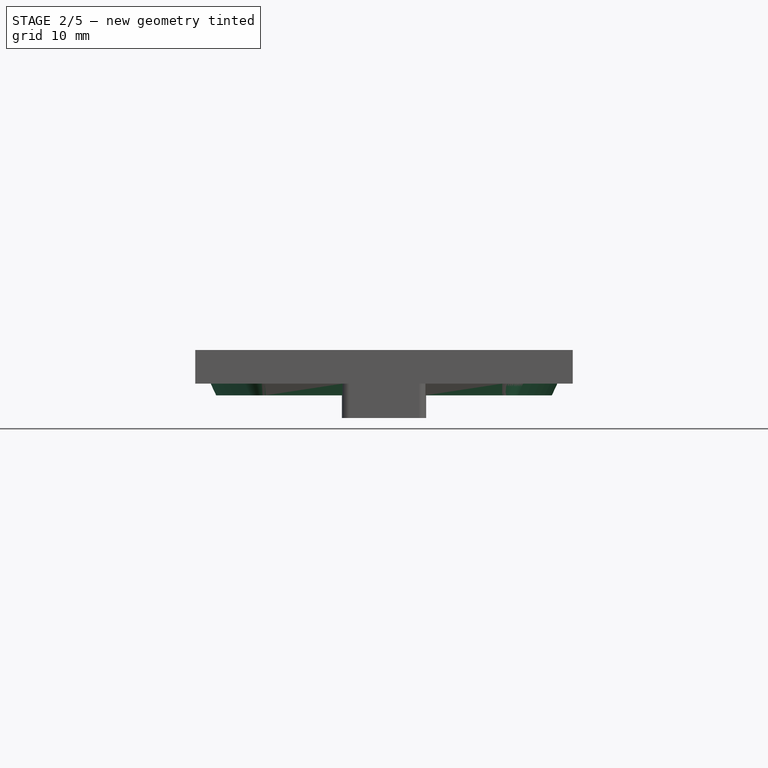
[diagram: stage 2 of 5 — front view after this stage's code; geometry added in this stage tinted green]
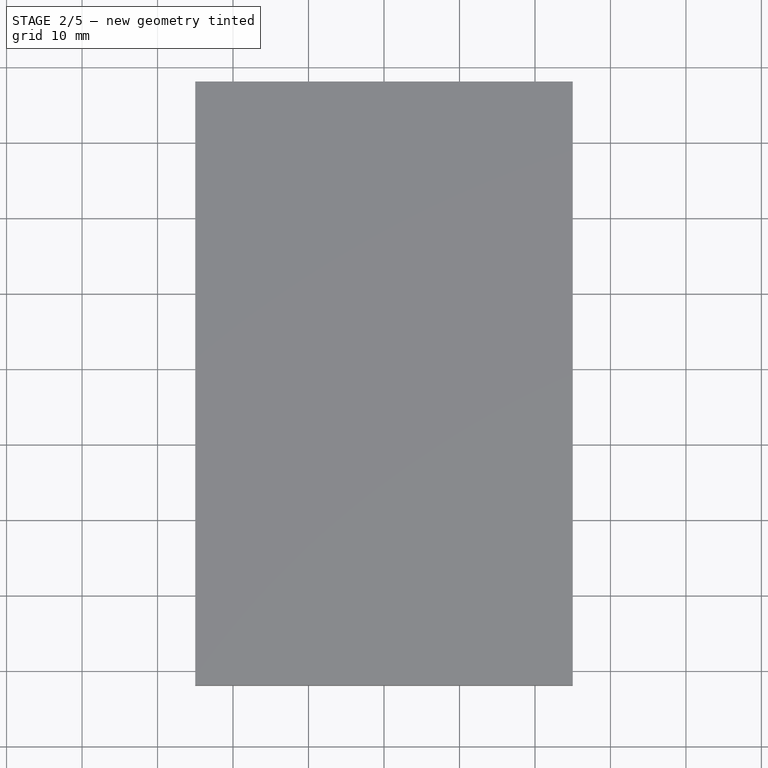
[diagram: stage 2 of 5 — top view after this stage's code; geometry added in this stage tinted green]
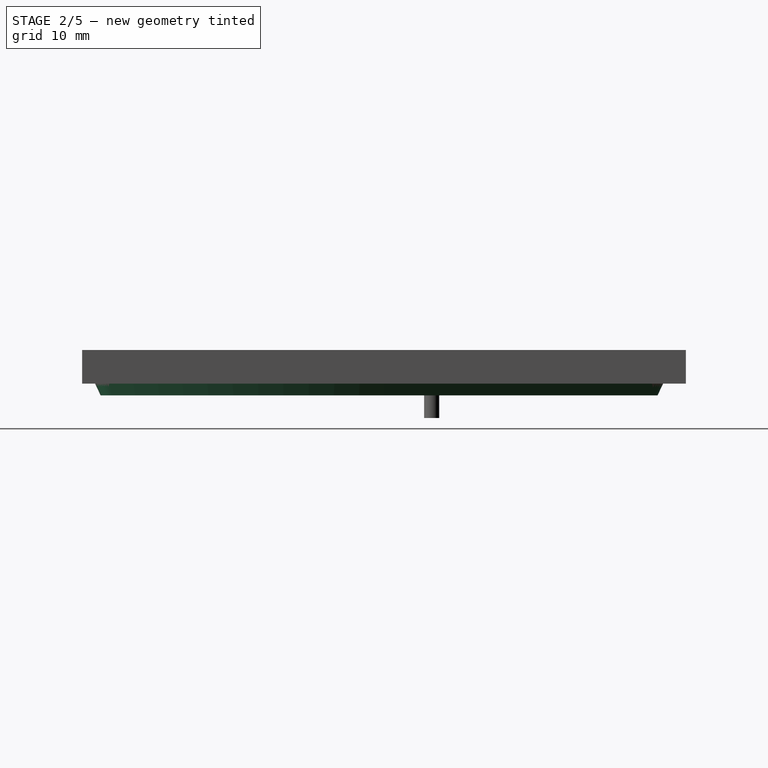
[diagram: stage 2 of 5 — right view after this stage's code; geometry added in this stage tinted green]
FEATURE [PartDesign::LinearPattern] LinearPattern001  label="HS Other vent holes ESP"
  BaseFeature = -> Pocket008
  Direction = -> X_Axis
  Length = 14
  Occurrences = 6
  Originals = -> [Pocket008]
FEATURE [PartDesign::Pocket] Pocket009  label="HS First vent hole sensor"
  BaseFeature = -> LinearPattern001
  Direction = (0,0,-1)
  Length = 5
  Length2 = 5
  Midplane = true
  Profile = -> Sketch026
  ReferenceAxis = -> Sketch026 [N_Axis]
  Type = 1
FEATURE [PartDesign::LinearPattern] LinearPattern002  label="HS Other vent holes sensor"
  BaseFeature = -> Pocket009
  Direction = -> X_Axis
  Length = 16
  Occurrences = 6
  Originals = -> [Pocket009]
FEATURE [PartDesign::Groove] Groove  label="HS Screw hole 1"
  Angle = 360
  Axis = (0,-7e-16,3.3)
  Base = (19,20,6.7)
  BaseFeature = -> LinearPattern002
  Profile = -> Sketch027
  ReferenceAxis = -> Sketch027 [Axis0]
FEATURE [PartDesign::Mirrored] Mirrored  label="HS Screw hole 2"
  BaseFeature = -> Groove
  MirrorPlane = -> YZ_Plane
  Originals = -> [Groove]
FEATURE [PartDesign::Groove] Groove001  label="HS Screw hole 3"
  Angle = 360
  Axis = (0,-7e-16,3.3)
  Base = (0,70,6.7)
  BaseFeature = -> Mirrored
  Profile = -> Sketch028
  ReferenceAxis = -> Sketch028 [Axis0]
FEATURE [PartDesign::AdditivePipe] AdditivePipe  label="ST Rim"
  AuxilleryCurvelinear = true
  AuxillerySpineTangent = false
  BaseFeature = -> Pad014
  Binormal = (0,0,0)
  Mode = 0
  Placement = pos=(0,0,0) rot=(1,0,0;1.5708rad)
  Profile = -> Sketch032
  Spine = -> Sketch033
  SpineTangent = false
  Transformation = 0
  Transition = 0
FEATURE [PartDesign::Pad] Pad013  label="ST Thermal barrier"
  BaseFeature = -> AdditivePipe
  Direction = (0,0,1)
  Length = 8
  Length2 = 10
  Placement = pos=(0,0,0) rot=(1,0,0;1.5708rad)
  Profile = -> Sketch040
  ReferenceAxis = -> Sketch040 [N_Axis]
  Type = 0
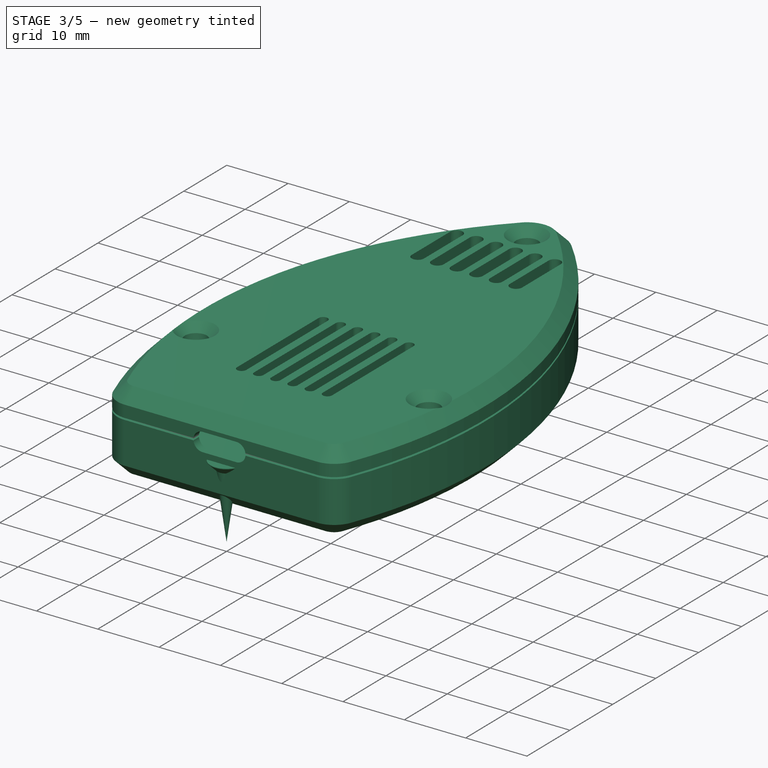
[diagram: stage 3 of 5 — iso view after this stage's code; geometry added in this stage tinted green]
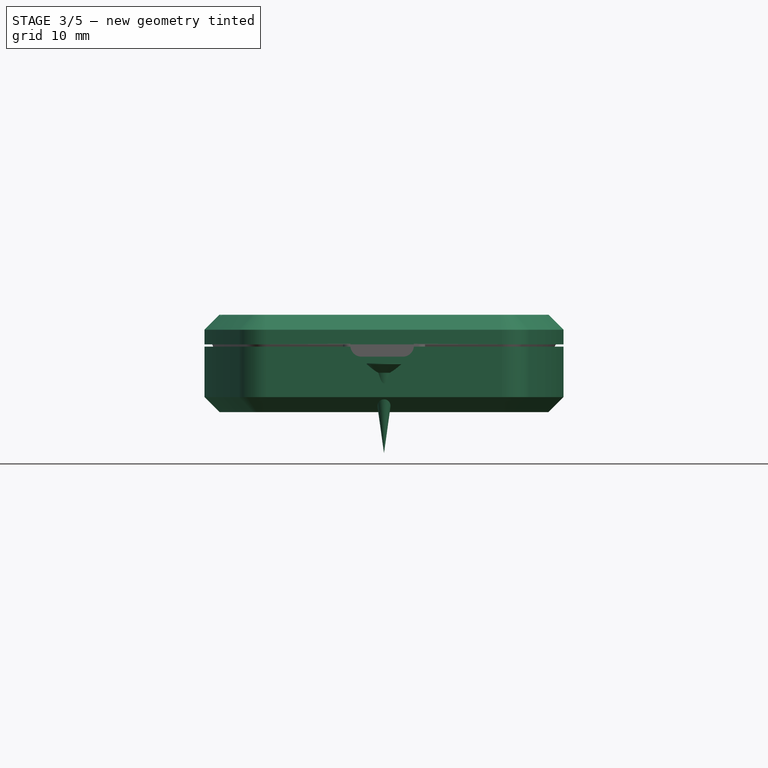
[diagram: stage 3 of 5 — front view after this stage's code; geometry added in this stage tinted green]
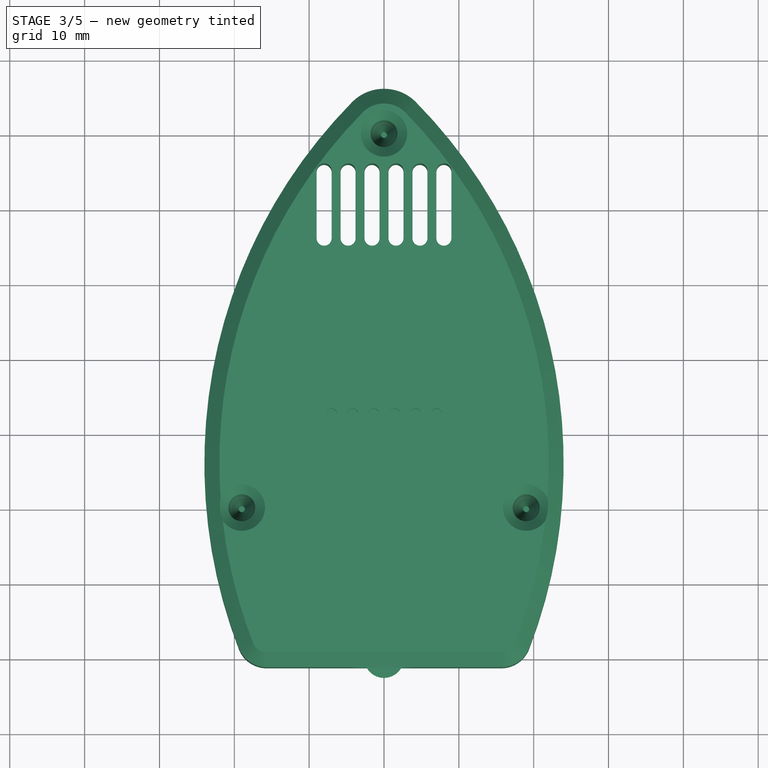
[diagram: stage 3 of 5 — top view after this stage's code; geometry added in this stage tinted green]
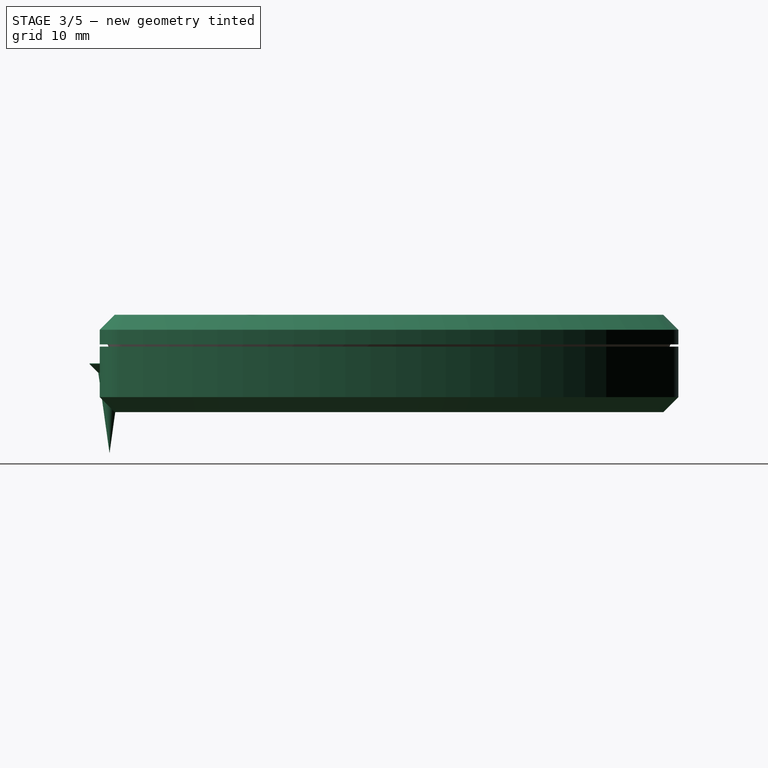
[diagram: stage 3 of 5 — right view after this stage's code; geometry added in this stage tinted green]
FEATURE [PartDesign::Body] Body012  label="SelftappingScrew3.0x12_02"
  Group = -> [Sketch015,Revolution001,Sketch016,Pocket002,PolarPattern001]
  Origin = -> Origin011
  Placement = pos=(-19,20,6.2) rot=(0,0,1;0rad)
  Tip = -> PolarPattern001
FEATURE [Sketcher::SketchObject] Sketch017
  FullyConstrained = true
  MapMode = 5
  Placement = pos=(0,0,0) rot=(0.57735,0.57735,0.57735;2.0944rad)
  Support = -> [YZ_Plane]
  sketch-geometry (5):
    g0: LineSegment StartX=0 StartY=0 StartZ=0 EndX=0 EndY=-12 EndZ=0
    g1: LineSegment StartX=0 StartY=-12 StartZ=0 EndX=1.5 EndY=-1.25 EndZ=0
    g2: LineSegment StartX=1.5 StartY=-1.25 StartZ=0 EndX=2.65 EndY=-0.1 EndZ=0
    g3: LineSegment StartX=2.65 StartY=0 StartZ=0 EndX=0 EndY=0 EndZ=0
    g4: LineSegment StartX=2.65 StartY=-0.1 StartZ=0 EndX=2.65 EndY=0 EndZ=0
  constraints (14):
    c: Coincident(g-1,g0)
    c: Vertical(g0)
    c: Coincident(g0,g1)
    c: Coincident(g1,g2)
    c: Coincident(g3,g0)
    c: DistanceY(g0,g0) = 12
    c: Angle(g3,g2) = 0.785398
    c: DistanceX(g0,g1) = 1.5
    c: Horizontal(g3)
    c: Coincident(g4,g2)
    c: Vertical(g4)
    c: Coincident(g3,g4)
    c: DistanceX(g3) = 2.65
    c: DistanceY(g4,g4) = 0.1
FEATURE [PartDesign::Revolution] Revolution002
  AllowMultiFace = false
  Angle = 360
  Axis = (-3e-16,3e-16,1)
  Base = (0,0,0)
  Placement = pos=(0,0,0) rot=(0.57735,0.57735,0.57735;2.0944rad)
  Profile = -> Sketch017
  ReferenceAxis = -> Z_Axis012
  Reversed = true
FEATURE [Sketcher::SketchObject] Sketch018
  FullyConstrained = false
  MapMode = 5
  Placement = pos=(0,0,0) rot=(1,0,0;1.5708rad)
  Support = -> [XZ_Plane013]
  sketch-geometry (3):
    g0: LineSegment StartX=-2 StartY=0 StartZ=0 EndX=0 EndY=-2 EndZ=0
    g1: LineSegment StartX=0 StartY=-2 StartZ=0 EndX=2 EndY=0 EndZ=0
    g2: LineSegment StartX=2 StartY=0 StartZ=0 EndX=-2 EndY=0 EndZ=0
  constraints (9):
    c: PointOnObject(g0,g-1)
    c: Coincident(g0,g1)
    c: PointOnObject(g1,g-1)
    c: Coincident(g1,g2)
    c: Coincident(g2,g0)
    c: PointOnObject(g0,g-2)
    c: Equal(g1,g0)
    c: Perpendicular(g0,g1)
    c: DistanceX(g2,g2) = 4
FEATURE [PartDesign::Pocket] Pocket003
  AllowMultiFace = false
  BaseFeature = -> Revolution002
  Direction = (0,1,2e-16)
  Length = 0.6
  Length2 = 100
  Midplane = true
  Placement = pos=(0,0,0) rot=(0.57735,0.57735,0.57735;2.0944rad)
  Profile = -> Sketch018
  Type = 0
FEATURE [Sketcher::SketchObject] Sketch042  label="st screw pillar holes"
  FullyConstrained = true
  MapMode = 5
  Support = -> [XY_Plane013]
  sketch-geometry (3):
    g0: Circle CenterX=19 CenterY=20 CenterZ=0 NormalX=0 NormalY=0 NormalZ=1 AngleXU=0 Radius=3
    g1: Circle CenterX=-19 CenterY=20 CenterZ=0 NormalX=0 NormalY=0 NormalZ=1 AngleXU=0 Radius=3
    g2: Circle CenterX=0 CenterY=70 CenterZ=0 NormalX=0 NormalY=0 NormalZ=1 AngleXU=0 Radius=3
  constraints (8):
    c: Symmetric(g0,g1,g-2)
    c: DistanceY(g0) = 20
    c: DistanceX(g1,g0) = 38
    c: PointOnObject(g2,g-2)
    c: DistanceY(g2) = 70
    c: Diameter(g2) = 6
    c: Equal(g2,g0)
    c: Equal(g0,g1)
FEATURE [PartDesign::Pocket] Pocket011  label="ST Screw pillar holes"
  BaseFeature = -> Pad013
  Direction = (0,0,-1)
  Length = 5
  Length2 = 5
  Placement = pos=(0,0,0) rot=(1,0,0;1.5708rad)
  Profile = -> Sketch042
  ReferenceAxis = -> Sketch042 [N_Axis]
  Reversed = true
  Type = 0
FEATURE [PartDesign::Body] Body014  label="Separation top"
  Group = -> [Sketch029,Sketch030,Sketch031,Binder,Sketch032,Sketch033,Sketch041,Pad014,AdditivePipe,Binder006,Sketch040,Pad013,Sketch042,Pocket011]
  Origin = -> Origin013
  Tip = -> Pocket011
FEATURE [Part::MultiCommon] Common  label="Top housing"
  Shapes = -> [Body,Body014]
FEATURE [PartDesign::SubShapeBinder] Binder007  label="sb ref screw pillars"
  BindCopyOnChange = 0
  BindMode = 0
  ClaimChildren = false
  Context = -> Body015 [Binder007.]
  Fuse = false
  MakeFace = true
  OffsetFill = false
  OffsetIntersection = false
  OffsetJoinType = 0
  OffsetOpenResult = false
  PartialLoad = false
  Relative = true
  Support = -> [Body014[Pocket011.Sketch042.]]
  _Version = 2
FEATURE [Sketcher::SketchObject] Sketch043  label="sb base"
  AttachmentOffset = pos=(0,0,2) rot=(0,0,1;0rad)
  ExternalGeometry = -> [Binder001]
  FullyConstrained = true
  MapMode = 5
  Placement = pos=(0,-2,-4e-16) rot=(1,0,0;1.5708rad)
  Support = -> [XZ_Plane015]
  sketch-geometry (4):
    g0: LineSegment StartX=-25 StartY=2.25 StartZ=0 EndX=25 EndY=2.25 EndZ=0
    g1: LineSegment StartX=25 StartY=2.25 StartZ=0 EndX=25 EndY=-7 EndZ=0
    g2: LineSegment StartX=25 StartY=-7 StartZ=0 EndX=-25 EndY=-7 EndZ=0
    g3: LineSegment StartX=-25 StartY=-7 StartZ=0 EndX=-25 EndY=2.25 EndZ=0
  constraints (12):
    c: Coincident(g0,g1)
    c: Coincident(g1,g2)
    c: Coincident(g2,g3)
    c: Coincident(g3,g0)
    c: Horizontal(g0)
    c: Horizontal(g2)
    c: Vertical(g1)
    c: Vertical(g3)
    c: DistanceY(g1,g-1) = 7
    c: PointOnObject(g-3,g1)
    c: PointOnObject(g-3,g3)
    c: DistanceY(g0,g-3) = 0.15
FEATURE [PartDesign::Pad] Pad015  label="SB Base"
  Direction = (0,-1,-2e-16)
  Length = 80
  Length2 = 10
  Placement = pos=(0,0,0) rot=(1,0,0;1.5708rad)
  Profile = -> Sketch043
  ReferenceAxis = -> Sketch043 [N_Axis]
  Reversed = true
  Type = 0
FEATURE [PartDesign::SubtractivePipe] SubtractivePipe  label="SB Groove"
  AuxilleryCurvelinear = true
  AuxillerySpineTangent = false
  BaseFeature = -> Pad015
  Binormal = (0,0,0)
  Mode = 0
  Placement = pos=(0,0,0) rot=(1,0,0;1.5708rad)
  Profile = -> Sketch037
  Spine = -> Sketch036
  SpineTangent = false
  Transformation = 0
  Transition = 0
FEATURE [PartDesign::Pocket] Pocket010  label="SB Cutout wires and sensor"
  BaseFeature = -> SubtractivePipe
  Direction = (0,0,-1)
  Length = 5
  Length2 = 5
  Placement = pos=(0,0,0) rot=(1,0,0;1.5708rad)
  Profile = -> Sketch038
  ReferenceAxis = -> Sketch038 [N_Axis]
  Reversed = true
  Type = 1
FEATURE [Sketcher::SketchObject] Sketch044  label="sb screw pillars"
  ExternalGeometry = -> [Binder007]
  FullyConstrained = true
  MapMode = 5
  Support = -> [XY_Plane014]
  sketch-geometry (3):
    g0: Circle CenterX=0 CenterY=70 CenterZ=0 NormalX=0 NormalY=0 NormalZ=1 AngleXU=0 Radius=2.5
    g1: Circle CenterX=-19 CenterY=20 CenterZ=0 NormalX=0 NormalY=0 NormalZ=1 AngleXU=0 Radius=2.5
    g2: Circle CenterX=19 CenterY=20 CenterZ=0 NormalX=0 NormalY=0 NormalZ=1 AngleXU=0 Radius=2.5
  constraints (6):
    c: Coincident(g0,g-5)
    c: Diameter(g0) = 5
    c: Coincident(g1,g-4)
    c: Coincident(g2,g-3)
    c: Equal(g0,g2)
    c: Equal(g2,g1)
FEATURE [PartDesign::Pad] Pad016  label="SB Screw pillars"
  BaseFeature = -> Pocket010
  Direction = (0,0,1)
  Length = 5
  Length2 = 10
  Placement = pos=(0,0,0) rot=(1,0,0;1.5708rad)
  Profile = -> Sketch044
  ReferenceAxis = -> Sketch044 [N_Axis]
  Type = 0
FEATURE [PartDesign::Body] Body015  label="Separation bottom"
  Group = -> [Binder001,Binder002,Binder003,Sketch036,Sketch037,Sketch043,Pad015,SubtractivePipe,Binder004,Binder005,Sketch038,Pocket010,Binder007,Sketch044,Pad016]
  Origin = -> Origin014
  Tip = -> Pad016
FEATURE [Part::MultiCommon] Common001  label="Bottom housing"
  Shapes = -> [Body015,Body]
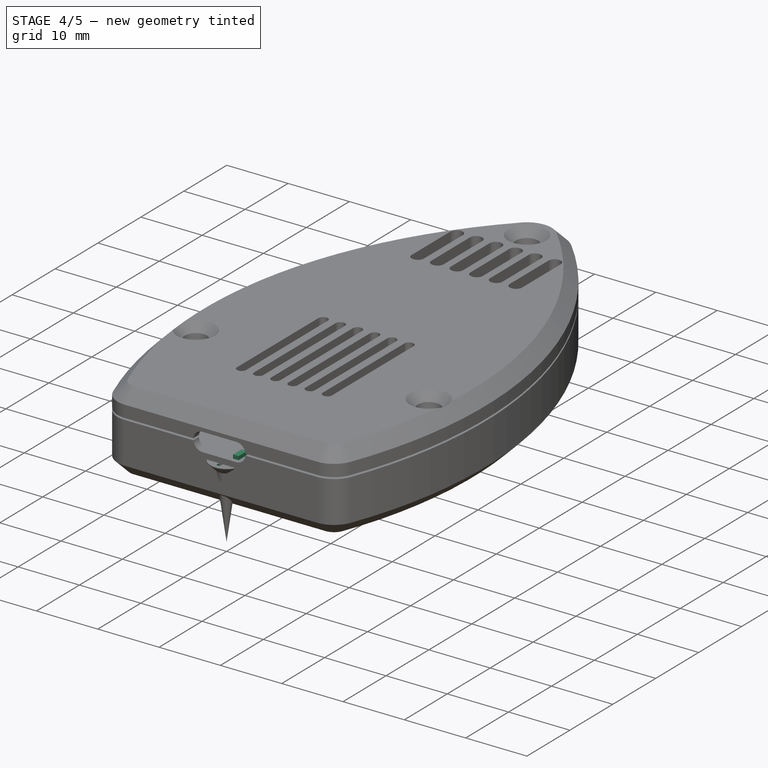
[diagram: stage 4 of 5 — iso view after this stage's code; geometry added in this stage tinted green]
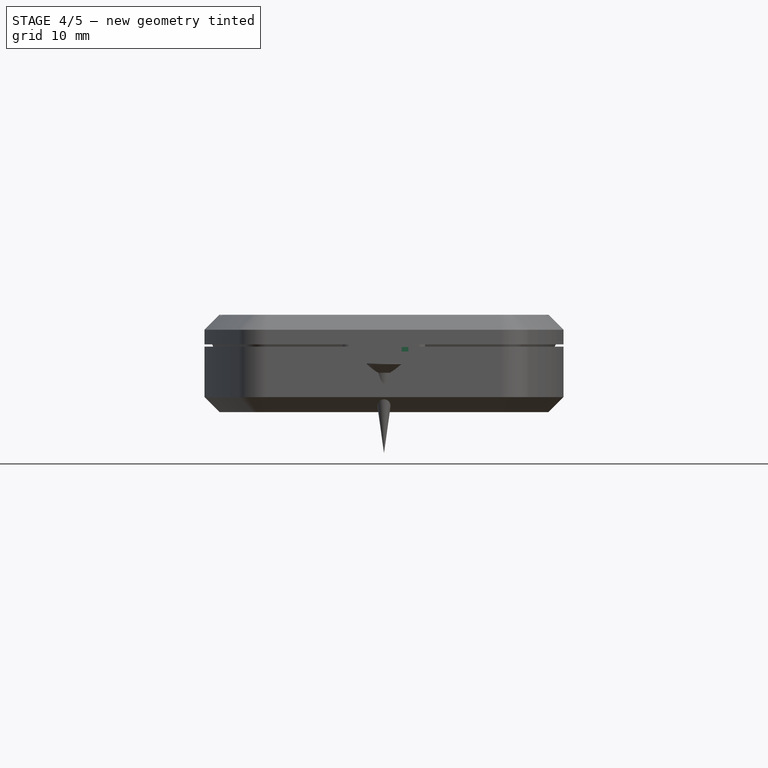
[diagram: stage 4 of 5 — front view after this stage's code; geometry added in this stage tinted green]
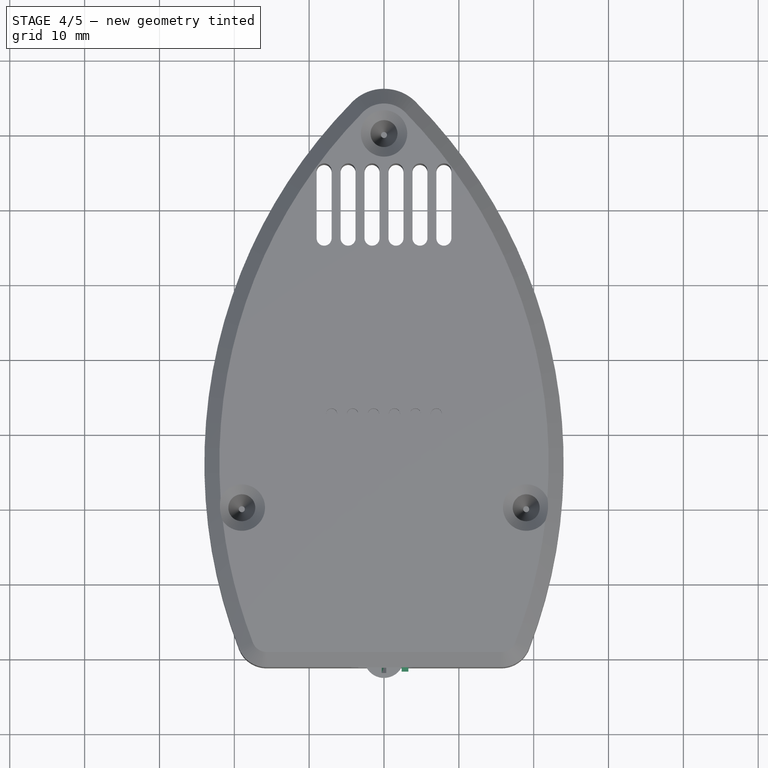
[diagram: stage 4 of 5 — top view after this stage's code; geometry added in this stage tinted green]
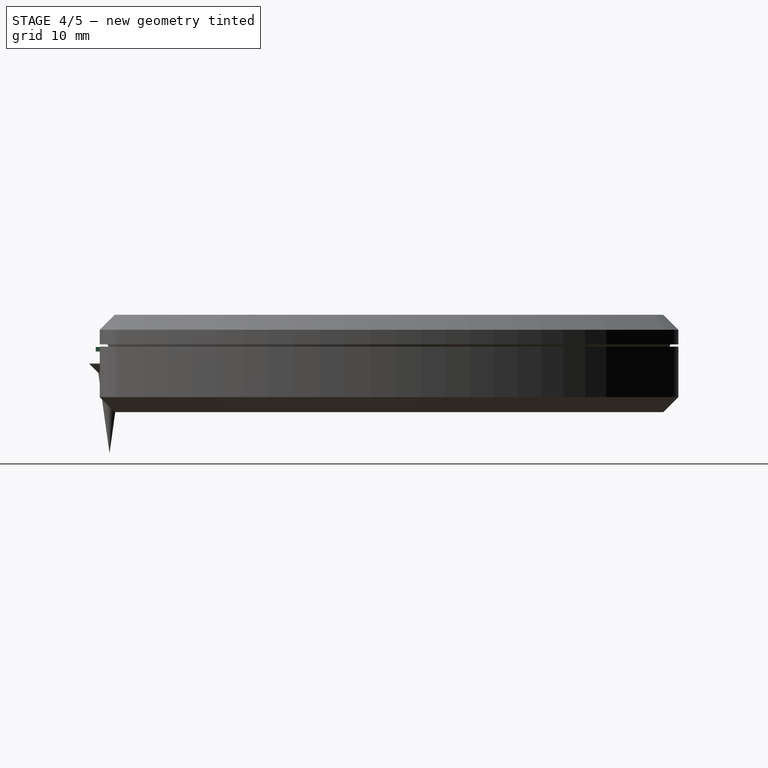
[diagram: stage 4 of 5 — right view after this stage's code; geometry added in this stage tinted green]
FEATURE [PartDesign::Body] Body009  label="Resistor5"
  Group = -> [Sketch011,Pad009]
  Tip = -> Pad009
FEATURE [Sketcher::SketchObject] Sketch012
  AttachmentOffset = pos=(0,0,1.6) rot=(0,0,1;0rad)
  FullyConstrained = false
  MapMode = 5
  Placement = pos=(0,0,1.6) rot=(0,0,1;0rad)
  sketch-geometry (4):
    g0: LineSegment StartX=2.35 StartY=0.15472 StartZ=0 EndX=3.25 EndY=0.15472 EndZ=0
    g1: LineSegment StartX=3.25 StartY=0.15472 StartZ=0 EndX=3.25 EndY=-1.84528 EndZ=0
    g2: LineSegment StartX=3.25 StartY=-1.84528 StartZ=0 EndX=2.35 EndY=-1.84528 EndZ=0
    g3: LineSegment StartX=2.35 StartY=-1.84528 StartZ=0 EndX=2.35 EndY=0.15472 EndZ=0
  constraints (12):
    c: Coincident(g0,g1)
    c: Coincident(g1,g2)
    c: Coincident(g2,g3)
    c: Coincident(g3,g0)
    c: Horizontal(g0)
    c: Horizontal(g2)
    c: Vertical(g1)
    c: Vertical(g3)
    c: DistanceY(g3,g3) = 2
    c: DistanceX(g0,g0) = 0.9
    c: DistanceY(g2) = -1.84528
    c: DistanceX(g1) = 3.25
FEATURE [PartDesign::Pad] Pad010
  AllowMultiFace = false
  Direction = (1,1,1)
  Length = 0.6
  Length2 = 100
  Placement = pos=(0,0,1.6) rot=(0,0,1;0rad)
  Profile = -> Sketch012
  Type = 0
FEATURE [PartDesign::Body] Body010  label="Resistor6"
  Group = -> [Sketch012,Pad010]
  Tip = -> Pad010
FEATURE [App::Part] Part  label="BME280"
  Group = -> [Body001,Body002,Body003,Body006,Body007,Body008,Body009,Body010]
  Origin = -> Origin009
  Placement = pos=(0,57,0) rot=(0,0,1;0rad)
FEATURE [Sketcher::SketchObject] Sketch013
  FullyConstrained = true
  MapMode = 5
  Placement = pos=(0,0,0) rot=(1,0,0;1.5708rad)
  Support = -> [XZ_Plane010]
  sketch-geometry (5):
    g0: LineSegment StartX=0 StartY=0 StartZ=0 EndX=0 EndY=-12 EndZ=0
    g1: LineSegment StartX=0 StartY=-12 StartZ=0 EndX=1.5 EndY=-1.25 EndZ=0
    g2: LineSegment StartX=1.5 StartY=-1.25 StartZ=0 EndX=2.65 EndY=-0.1 EndZ=0
    g3: LineSegment StartX=2.65 StartY=0 StartZ=0 EndX=0 EndY=0 EndZ=0
    g4: LineSegment StartX=2.65 StartY=-0.1 StartZ=0 EndX=2.65 EndY=0 EndZ=0
  constraints (14):
    c: Coincident(g-1,g0)
    c: Vertical(g0)
    c: Coincident(g0,g1)
    c: Coincident(g1,g2)
    c: Coincident(g3,g0)
    c: DistanceY(g0,g0) = 12
    c: Angle(g3,g2) = 0.785398
    c: DistanceX(g0,g1) = 1.5
    c: Horizontal(g3)
    c: Coincident(g4,g2)
    c: Vertical(g4)
    c: Coincident(g3,g4)
    c: DistanceX(g3) = 2.65
    c: DistanceY(g4,g4) = 0.1
FEATURE [PartDesign::Revolution] Revolution
  AllowMultiFace = false
  Angle = 360
  Axis = (-3e-16,3e-16,1)
  Base = (0,0,0)
  Placement = pos=(0,0,0) rot=(1,0,0;1.5708rad)
  Profile = -> Sketch013
  ReferenceAxis = -> Z_Axis010
  Reversed = true
FEATURE [Sketcher::SketchObject] Sketch014
  FullyConstrained = false
  MapMode = 5
  Placement = pos=(0,0,0) rot=(1,0,0;1.5708rad)
  Support = -> [XZ_Plane010]
  sketch-geometry (3):
    g0: LineSegment StartX=-2 StartY=0 StartZ=0 EndX=0 EndY=-2 EndZ=0
    g1: LineSegment StartX=0 StartY=-2 StartZ=0 EndX=2 EndY=0 EndZ=0
    g2: LineSegment StartX=2 StartY=0 StartZ=0 EndX=-2 EndY=0 EndZ=0
  constraints (9):
    c: PointOnObject(g0,g-1)
    c: Coincident(g0,g1)
    c: PointOnObject(g1,g-1)
    c: Coincident(g1,g2)
    c: Coincident(g2,g0)
    c: PointOnObject(g0,g-2)
    c: Equal(g1,g0)
    c: Perpendicular(g0,g1)
    c: DistanceX(g2,g2) = 4
FEATURE [PartDesign::Pocket] Pocket001  label="Pocket"
  AllowMultiFace = false
  BaseFeature = -> Revolution
  Direction = (0,1,2e-16)
  Length = 0.6
  Length2 = 100
  Midplane = true
  Placement = pos=(0,0,0) rot=(1,0,0;1.5708rad)
  Profile = -> Sketch014
  Type = 0
FEATURE [PartDesign::PolarPattern] PolarPattern
  Angle = 90
  Axis = -> Z_Axis010
  BaseFeature = -> Pocket001
  Occurrences = 2
  Originals = -> [Pocket001]
  Placement = pos=(0,0,0) rot=(1,0,0;1.5708rad)
FEATURE [PartDesign::Body] Body011  label="SelftappingScrew3.0x12_01"
  Group = -> [Sketch013,Revolution,Sketch014,Pocket001,PolarPattern]
  Origin = -> Origin010
  Placement = pos=(19,20,6.2) rot=(0,0,1;0rad)
  Tip = -> PolarPattern
FEATURE [Sketcher::SketchObject] Sketch015
  FullyConstrained = true
  MapMode = 5
  Placement = pos=(0,0,0) rot=(1,0,0;1.5708rad)
  Support = -> [XZ_Plane]
  sketch-geometry (5):
    g0: LineSegment StartX=0 StartY=0 StartZ=0 EndX=0 EndY=-12 EndZ=0
    g1: LineSegment StartX=0 StartY=-12 StartZ=0 EndX=1.5 EndY=-1.25 EndZ=0
    g2: LineSegment StartX=1.5 StartY=-1.25 StartZ=0 EndX=2.65 EndY=-0.1 EndZ=0
    g3: LineSegment StartX=2.65 StartY=0 StartZ=0 EndX=0 EndY=0 EndZ=0
    g4: LineSegment StartX=2.65 StartY=-0.1 StartZ=0 EndX=2.65 EndY=0 EndZ=0
  constraints (14):
    c: Coincident(g-1,g0)
    c: Vertical(g0)
    c: Coincident(g0,g1)
    c: Coincident(g1,g2)
    c: Coincident(g3,g0)
    c: DistanceY(g0,g0) = 12
    c: Angle(g3,g2) = 0.785398
    c: DistanceX(g0,g1) = 1.5
    c: Horizontal(g3)
    c: Coincident(g4,g2)
    c: Vertical(g4)
    c: Coincident(g3,g4)
    c: DistanceX(g3) = 2.65
    c: DistanceY(g4,g4) = 0.1
FEATURE [PartDesign::Revolution] Revolution001
  AllowMultiFace = false
  Angle = 360
  Axis = (-3e-16,3e-16,1)
  Base = (0,0,0)
  Placement = pos=(0,0,0) rot=(1,0,0;1.5708rad)
  Profile = -> Sketch015
  ReferenceAxis = -> Z_Axis011
  Reversed = true
FEATURE [Sketcher::SketchObject] Sketch016
  FullyConstrained = false
  MapMode = 5
  Placement = pos=(0,0,0) rot=(1,0,0;1.5708rad)
  Support = -> [XZ_Plane011]
  sketch-geometry (3):
    g0: LineSegment StartX=-2 StartY=0 StartZ=0 EndX=0 EndY=-2 EndZ=0
    g1: LineSegment StartX=0 StartY=-2 StartZ=0 EndX=2 EndY=0 EndZ=0
    g2: LineSegment StartX=2 StartY=0 StartZ=0 EndX=-2 EndY=0 EndZ=0
  constraints (9):
    c: PointOnObject(g0,g-1)
    c: Coincident(g0,g1)
    c: PointOnObject(g1,g-1)
    c: Coincident(g1,g2)
    c: Coincident(g2,g0)
    c: PointOnObject(g0,g-2)
    c: Equal(g1,g0)
    c: Perpendicular(g0,g1)
    c: DistanceX(g2,g2) = 4
FEATURE [PartDesign::Pocket] Pocket002
  AllowMultiFace = false
  BaseFeature = -> Revolution001
  Direction = (0,1,2e-16)
  Length = 0.6
  Length2 = 100
  Midplane = true
  Placement = pos=(0,0,0) rot=(1,0,0;1.5708rad)
  Profile = -> Sketch016
  Type = 0
FEATURE [PartDesign::PolarPattern] PolarPattern001
  Angle = 90
  Axis = -> Z_Axis011
  BaseFeature = -> Pocket002
  Occurrences = 2
  Originals = -> [Pocket002]
  Placement = pos=(0,0,0) rot=(1,0,0;1.5708rad)
FEATURE [PartDesign::PolarPattern] PolarPattern002
  Angle = 90
  Axis = -> Z_Axis012
  BaseFeature = -> Pocket003
  Occurrences = 2
  Originals = -> [Pocket003]
  Placement = pos=(0,0,0) rot=(0.57735,0.57735,0.57735;2.0944rad)
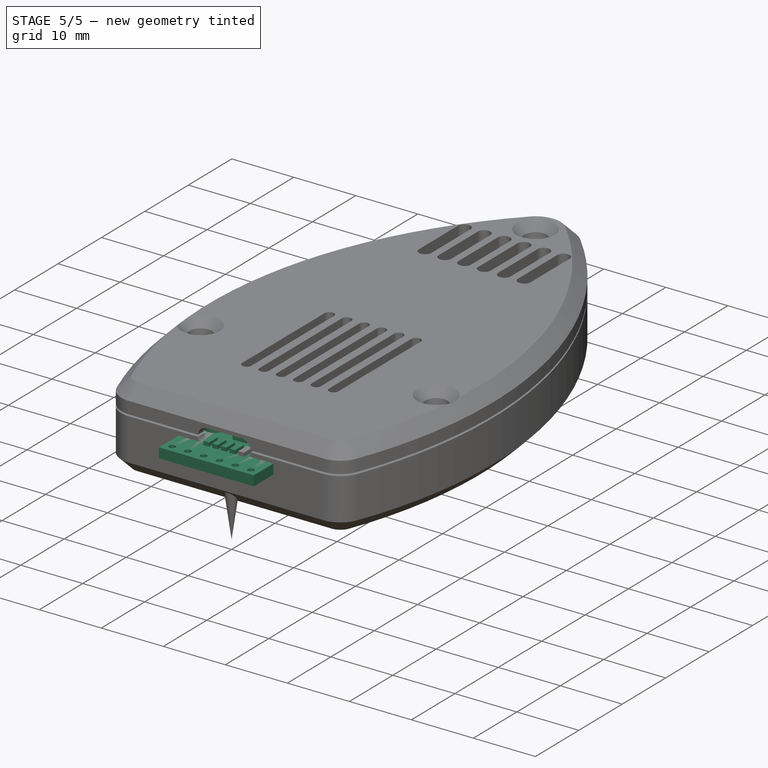
[diagram: stage 5 of 5 — iso view after this stage's code; geometry added in this stage tinted green]
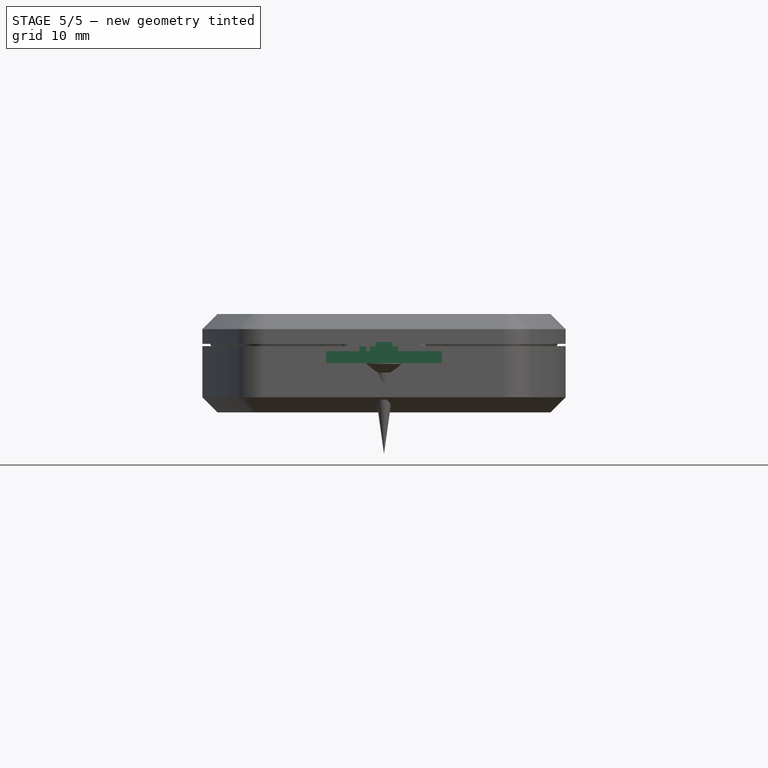
[diagram: stage 5 of 5 — front view after this stage's code; geometry added in this stage tinted green]
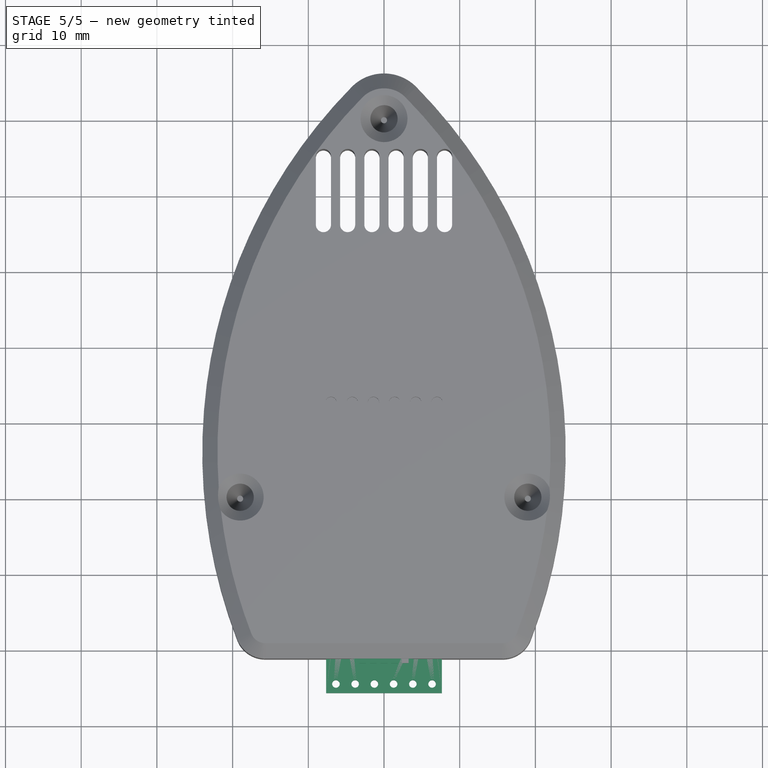
[diagram: stage 5 of 5 — top view after this stage's code; geometry added in this stage tinted green]
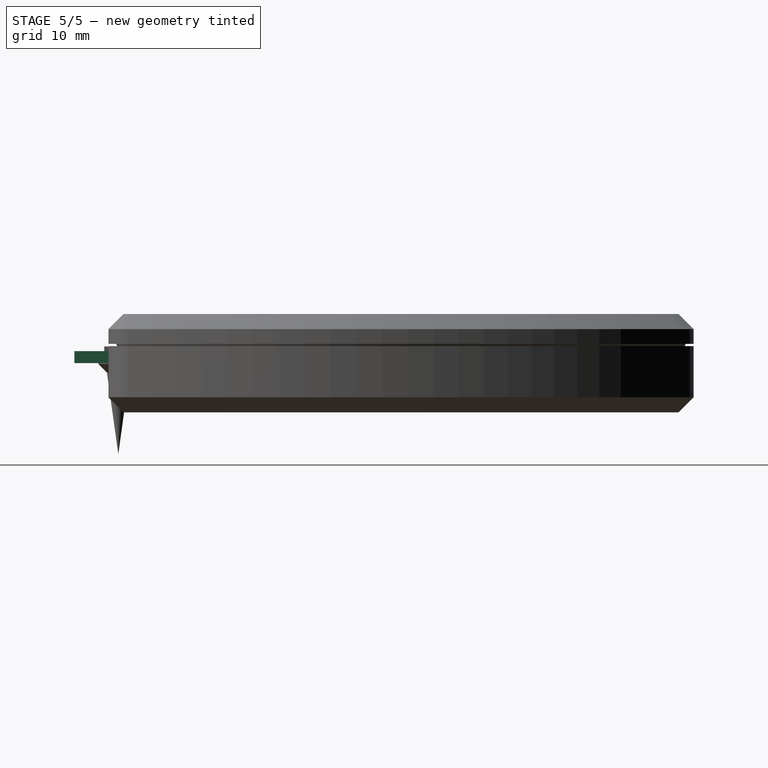
[diagram: stage 5 of 5 — right view after this stage's code; geometry added in this stage tinted green]
FEATURE [Part::Feature] Part__Feature  label="MH-ET_LIVE_MiniKit"
  Placement = pos=(0,19.5,7e-15) rot=(1,0,0;1.5708rad)
  shape: bbox 31.02 x 39.44 x 99.68 mm, 5494 faces, 23 solids (baked)
FEATURE [Sketcher::SketchObject] Sketch
  FullyConstrained = false
  MapMode = 5
  Support = -> [XY_Plane001]
  sketch-geometry (7):
    g0: LineSegment StartX=-7.65 StartY=5.8 StartZ=0 EndX=7.65 EndY=5.8 EndZ=0
    g1: LineSegment StartX=7.65 StartY=5.8 StartZ=0 EndX=7.65 EndY=-5.8 EndZ=0
    g2: LineSegment StartX=7.65 StartY=-5.8 StartZ=0 EndX=-7.65 EndY=-5.8 EndZ=0
    g3: LineSegment StartX=-7.65 StartY=-5.8 StartZ=0 EndX=-7.65 EndY=5.8 EndZ=0
    g4: Circle CenterX=-5.05 CenterY=3.4 CenterZ=0 NormalX=0 NormalY=0 NormalZ=1 AngleXU=0 Radius=1.575
    g5: Circle CenterX=5.05 CenterY=3.4 CenterZ=0 NormalX=0 NormalY=0 NormalZ=1 AngleXU=0 Radius=1.575
    g6: LineSegment StartX=5.05 StartY=4.975 StartZ=0 EndX=5.05 EndY=5.8 EndZ=0
  constraints (19):
    c: Horizontal(g2)
    c: Vertical(g3)
    c: Symmetric(g1,g3,g-2)
    c: Symmetric(g2,g0,g-1)
    c: DistanceX(g3,g1) = 15.3
    c: DistanceY(g2,g0) = 11.6
    c: Equal(g5,g4)
    c: Symmetric(g5,g4,g-2)
    c: Radius(g5) = 1.575
    c: DistanceX(g4,g5) = 10.1
    c: Coincident(g0,g1)
    c: Coincident(g0,g3)
    c: Coincident(g2,g3)
    c: Coincident(g1,g2)
    c: PointOnObject(g6,g5)
    c: PointOnObject(g6,g0)
    c: Vertical(g6)
    c: PointOnObject(g5,g6)
    c: DistanceY(g4) = 3.4
FEATURE [PartDesign::Pad] Pad  label="Board"
  AllowMultiFace = false
  Direction = (1,1,1)
  Length = 1.6
  Length2 = 100
  Profile = -> Sketch
  Type = 0
FEATURE [Sketcher::SketchObject] Sketch001
  FullyConstrained = false
  MapMode = 5
  Support = -> [XY_Plane001]
  sketch-geometry (1):
    g0: Circle CenterX=-6.35 CenterY=-4.6 CenterZ=0 NormalX=0 NormalY=0 NormalZ=1 AngleXU=0 Radius=0.5
  constraints (3):
    c: DistanceX(g0,g-1) = 6.35
    c: Radius(g0) = 0.5
    c: DistanceY(g0,g-1) = 4.6
FEATURE [PartDesign::Pocket] Pocket  label="HoleFrontFirst"
  AllowMultiFace = false
  BaseFeature = -> Pad
  Direction = (1,1,1)
  Length = 5
  Length2 = 100
  Midplane = true
  Profile = -> Sketch001
  Type = 1
FEATURE [PartDesign::LinearPattern] LinearPattern  label="HoleFrontOthers"
  BaseFeature = -> Pocket
  Direction = -> X_Axis001
  Length = 12.7
  Occurrences = 6
  Originals = -> [Pocket]
FEATURE [PartDesign::Body] Body001  label="PCB"
  Group = -> [Sketch,Pad,Sketch001,Pocket,LinearPattern]
  Origin = -> Origin001
  Tip = -> LinearPattern
FEATURE [Sketcher::SketchObject] Sketch004
  AttachmentOffset = pos=(0,0,1.6) rot=(0,0,1;0rad)
  FullyConstrained = false
  MapMode = 5
  Placement = pos=(0,0,1.6) rot=(0,0,1;0rad)
  Support = -> [XY_Plane002]
  sketch-geometry (4):
    g0: LineSegment StartX=-1.1 StartY=3.4 StartZ=0 EndX=1.1 EndY=3.4 EndZ=0
    g1: LineSegment StartX=1.1 StartY=3.4 StartZ=0 EndX=1.1 EndY=1.8 EndZ=0
    g2: LineSegment StartX=1.1 StartY=1.8 StartZ=0 EndX=-1.1 EndY=1.8 EndZ=0
    g3: LineSegment StartX=-1.1 StartY=1.8 StartZ=0 EndX=-1.1 EndY=3.4 EndZ=0
  constraints (11):
    c: Coincident(g0,g1)
    c: Coincident(g1,g2)
    c: Coincident(g2,g3)
    c: Coincident(g3,g0)
    c: Horizontal(g2)
    c: Vertical(g1)
    c: Vertical(g3)
    c: DistanceX(g0,g0) = 2.2
    c: DistanceY(g1,g1) = 1.6
    c: Symmetric(g0,g0,g-2)
    c: DistanceY(g1) = 1.8
FEATURE [PartDesign::Pad] Pad002
  AllowMultiFace = false
  Direction = (1,1,1)
  Length = 1.2
  Length2 = 100
  Profile = -> Sketch004
  Type = 0
FEATURE [PartDesign::Body] Body002  label="BME280 device"
  Group = -> [Sketch004,Pad002]
  Origin = -> Origin002
  Tip = -> Pad002
FEATURE [Sketcher::SketchObject] Sketch005
  AttachmentOffset = pos=(0,0,1.6) rot=(0,0,1;0rad)
  FullyConstrained = false
  MapMode = 5
  Placement = pos=(0,0,1.6) rot=(0,0,1;0rad)
  Support = -> [XY_Plane003]
  sketch-geometry (4):
    g0: LineSegment StartX=-1 StartY=5.21574 StartZ=0 EndX=1 EndY=5.21574 EndZ=0
    g1: LineSegment StartX=1 StartY=5.21574 StartZ=0 EndX=1 EndY=4.31574 EndZ=0
    g2: LineSegment StartX=1 StartY=4.31574 StartZ=0 EndX=-1 EndY=4.31574 EndZ=0
    g3: LineSegment StartX=-1 StartY=4.31574 StartZ=0 EndX=-1 EndY=5.21574 EndZ=0
  constraints (10):
    c: Coincident(g0,g1)
    c: Coincident(g1,g2)
    c: Coincident(g2,g3)
    c: Coincident(g3,g0)
    c: Horizontal(g0)
    c: Vertical(g1)
    c: Vertical(g3)
    c: DistanceY(g3,g3) = 0.9
    c: DistanceX(g0,g0) = 2
    c: Symmetric(g2,g1,g-2)
FEATURE [PartDesign::Pad] Pad003
  AllowMultiFace = false
  Direction = (1,1,1)
  Length = 0.6
  Length2 = 100
  Profile = -> Sketch005
  Type = 0
FEATURE [PartDesign::Body] Body003  label="Resistor1"
  Group = -> [Sketch005,Pad003]
  Origin = -> Origin003
  Tip = -> Pad003
FEATURE [Sketcher::SketchObject] Sketch008
  AttachmentOffset = pos=(0,0,1.6) rot=(0,0,1;0rad)
  FullyConstrained = false
  MapMode = 5
  Placement = pos=(0,0,1.6) rot=(0,0,1;0rad)
  Support = -> [XY_Plane006]
  sketch-geometry (4):
    g0: LineSegment StartX=-3.25 StartY=0.15472 StartZ=0 EndX=-2.35 EndY=0.15472 EndZ=0
    g1: LineSegment StartX=-2.35 StartY=0.15472 StartZ=0 EndX=-2.35 EndY=-1.84528 EndZ=0
    g2: LineSegment StartX=-2.35 StartY=-1.84528 StartZ=0 EndX=-3.25 EndY=-1.84528 EndZ=0
    g3: LineSegment StartX=-3.25 StartY=-1.84528 StartZ=0 EndX=-3.25 EndY=0.15472 EndZ=0
  constraints (12):
    c: Coincident(g0,g1)
    c: Coincident(g1,g2)
    c: Coincident(g2,g3)
    c: Coincident(g3,g0)
    c: Horizontal(g0)
    c: Horizontal(g2)
    c: Vertical(g1)
    c: Vertical(g3)
    c: DistanceY(g3,g3) = 2
    c: DistanceX(g0,g0) = 0.9
    c: DistanceY(g2) = -1.84528
    c: DistanceX(g2,g-1) = 3.25
FEATURE [PartDesign::Pad] Pad006
  AllowMultiFace = false
  Direction = (1,1,1)
  Length = 0.6
  Length2 = 100
  Profile = -> Sketch008
  Type = 0
FEATURE [PartDesign::Body] Body006  label="Resistor2"
  Group = -> [Sketch008,Pad006]
  Origin = -> Origin006
  Tip = -> Pad006
FEATURE [Sketcher::SketchObject] Sketch009
  AttachmentOffset = pos=(0,0,1.6) rot=(0,0,1;0rad)
  FullyConstrained = false
  MapMode = 5
  Placement = pos=(0,0,1.6) rot=(0,0,1;0rad)
  Support = -> [XY_Plane007]
  sketch-geometry (4):
    g0: LineSegment StartX=-1.85 StartY=0.15472 StartZ=0 EndX=-0.95 EndY=0.15472 EndZ=0
    g1: LineSegment StartX=-0.95 StartY=0.15472 StartZ=0 EndX=-0.95 EndY=-1.84528 EndZ=0
    g2: LineSegment StartX=-0.95 StartY=-1.84528 StartZ=0 EndX=-1.85 EndY=-1.84528 EndZ=0
    g3: LineSegment StartX=-1.85 StartY=-1.84528 StartZ=0 EndX=-1.85 EndY=0.15472 EndZ=0
  constraints (12):
    c: Coincident(g0,g1)
    c: Coincident(g1,g2)
    c: Coincident(g2,g3)
    c: Coincident(g3,g0)
    c: Horizontal(g0)
    c: Horizontal(g2)
    c: Vertical(g1)
    c: Vertical(g3)
    c: DistanceY(g3,g3) = 2
    c: DistanceX(g0,g0) = 0.9
    c: DistanceY(g2) = -1.84528
    c: DistanceX(g2) = -1.85
FEATURE [PartDesign::Pad] Pad007
  AllowMultiFace = false
  Direction = (1,1,1)
  Length = 0.6
  Length2 = 100
  Profile = -> Sketch009
  Type = 0
FEATURE [PartDesign::Body] Body007  label="Resistor3"
  Group = -> [Sketch009,Pad007]
  Origin = -> Origin007
  Tip = -> Pad007
FEATURE [Sketcher::SketchObject] Sketch010
  AttachmentOffset = pos=(0,0,1.6) rot=(0,0,1;0rad)
  FullyConstrained = false
  MapMode = 5
  Placement = pos=(0,0,1.6) rot=(0,0,1;0rad)
  Support = -> [XY_Plane008]
  sketch-geometry (4):
    g0: LineSegment StartX=-0.45 StartY=0.15472 StartZ=0 EndX=0.45 EndY=0.15472 EndZ=0
    g1: LineSegment StartX=0.45 StartY=0.15472 StartZ=0 EndX=0.45 EndY=-1.84528 EndZ=0
    g2: LineSegment StartX=0.45 StartY=-1.84528 StartZ=0 EndX=-0.45 EndY=-1.84528 EndZ=0
    g3: LineSegment StartX=-0.45 StartY=-1.84528 StartZ=0 EndX=-0.45 EndY=0.15472 EndZ=0
  constraints (11):
    c: Coincident(g0,g1)
    c: Coincident(g1,g2)
    c: Coincident(g2,g3)
    c: Coincident(g3,g0)
    c: Horizontal(g2)
    c: Vertical(g1)
    c: Vertical(g3)
    c: DistanceY(g3,g3) = 2
    c: DistanceX(g0,g0) = 0.9
    c: DistanceY(g2) = -1.84528
    c: Symmetric(g0,g0,g-2)
FEATURE [PartDesign::Pad] Pad008
  AllowMultiFace = false
  Direction = (1,1,1)
  Length = 0.6
  Length2 = 100
  Profile = -> Sketch010
  Type = 0
FEATURE [PartDesign::Body] Body008  label="Resistor4"
  Group = -> [Sketch010,Pad008]
  Origin = -> Origin008
  Tip = -> Pad008
FEATURE [Sketcher::SketchObject] Sketch011
  AttachmentOffset = pos=(0,0,1.6) rot=(0,0,1;0rad)
  FullyConstrained = false
  MapMode = 5
  Placement = pos=(0,0,1.6) rot=(0,0,1;0rad)
  sketch-geometry (4):
    g0: LineSegment StartX=0.95 StartY=0.15472 StartZ=0 EndX=1.85 EndY=0.15472 EndZ=0
    g1: LineSegment StartX=1.85 StartY=0.15472 StartZ=0 EndX=1.85 EndY=-1.84528 EndZ=0
    g2: LineSegment StartX=1.85 StartY=-1.84528 StartZ=0 EndX=0.95 EndY=-1.84528 EndZ=0
    g3: LineSegment StartX=0.95 StartY=-1.84528 StartZ=0 EndX=0.95 EndY=0.15472 EndZ=0
  constraints (12):
    c: Coincident(g0,g1)
    c: Coincident(g1,g2)
    c: Coincident(g2,g3)
    c: Coincident(g3,g0)
    c: Horizontal(g0)
    c: Horizontal(g2)
    c: Vertical(g1)
    c: Vertical(g3)
    c: DistanceY(g3,g3) = 2
    c: DistanceX(g0,g0) = 0.9
    c: DistanceY(g2) = -1.84528
    c: DistanceX(g1) = 1.85
FEATURE [PartDesign::Pad] Pad009
  AllowMultiFace = false
  Direction = (1,1,1)
  Length = 0.6
  Length2 = 100
  Placement = pos=(0,0,1.6) rot=(0,0,1;0rad)
  Profile = -> Sketch011
  Type = 0
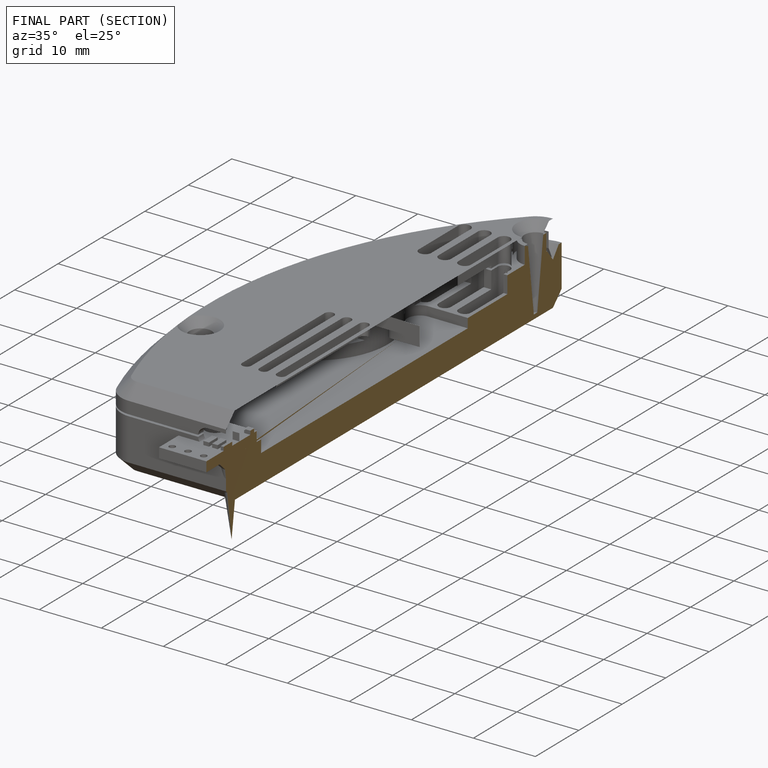
[diagram: finished part — half-section view (interior)]
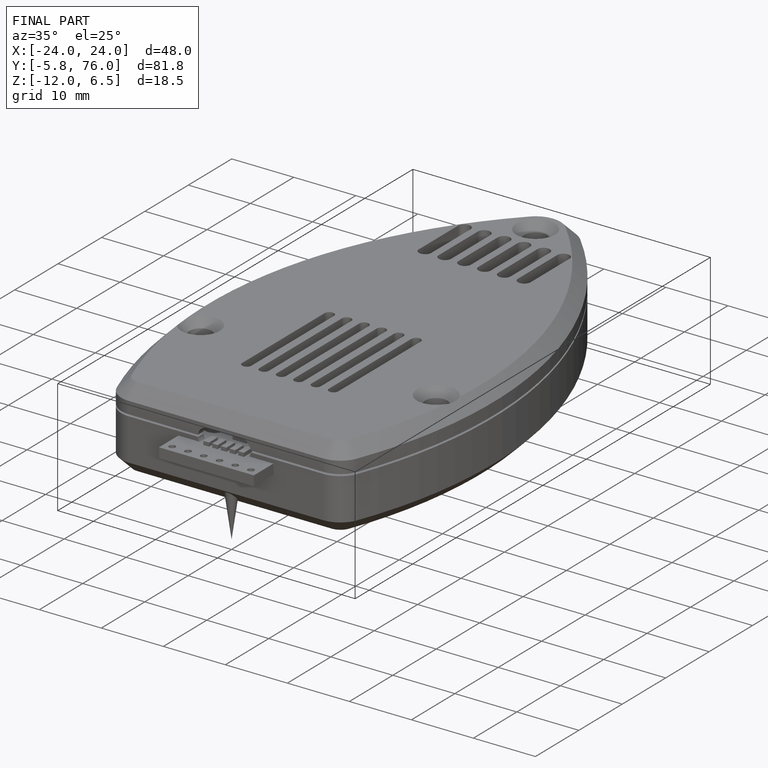
[diagram: finished part — iso view with bounding-box wireframe]
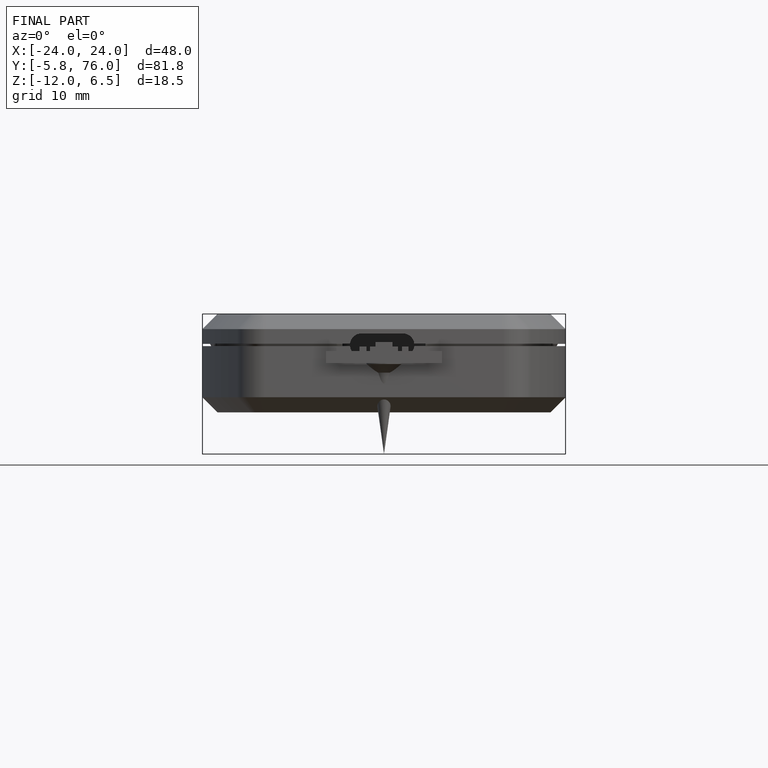
[diagram: finished part — front view with bounding-box wireframe]
